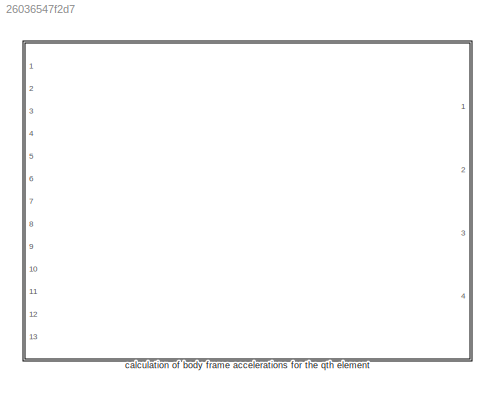
MODEL slx_26036547f2d7
KIND library
CONFIG AbsTol = auto
CONFIG EnableMultiTasking = off
CONFIG FixedStep = auto
CONFIG MaxStep = auto
CONFIG MinStep = auto
CONFIG RelTol = 1e-3
CONFIG SampleTimeConstraint = Unconstrained
CONFIG Solver = VariableStepAuto
CONFIG SolverName = VariableStepAuto
CONFIG StartTime = 0.0
CONFIG StopTime = 10.0
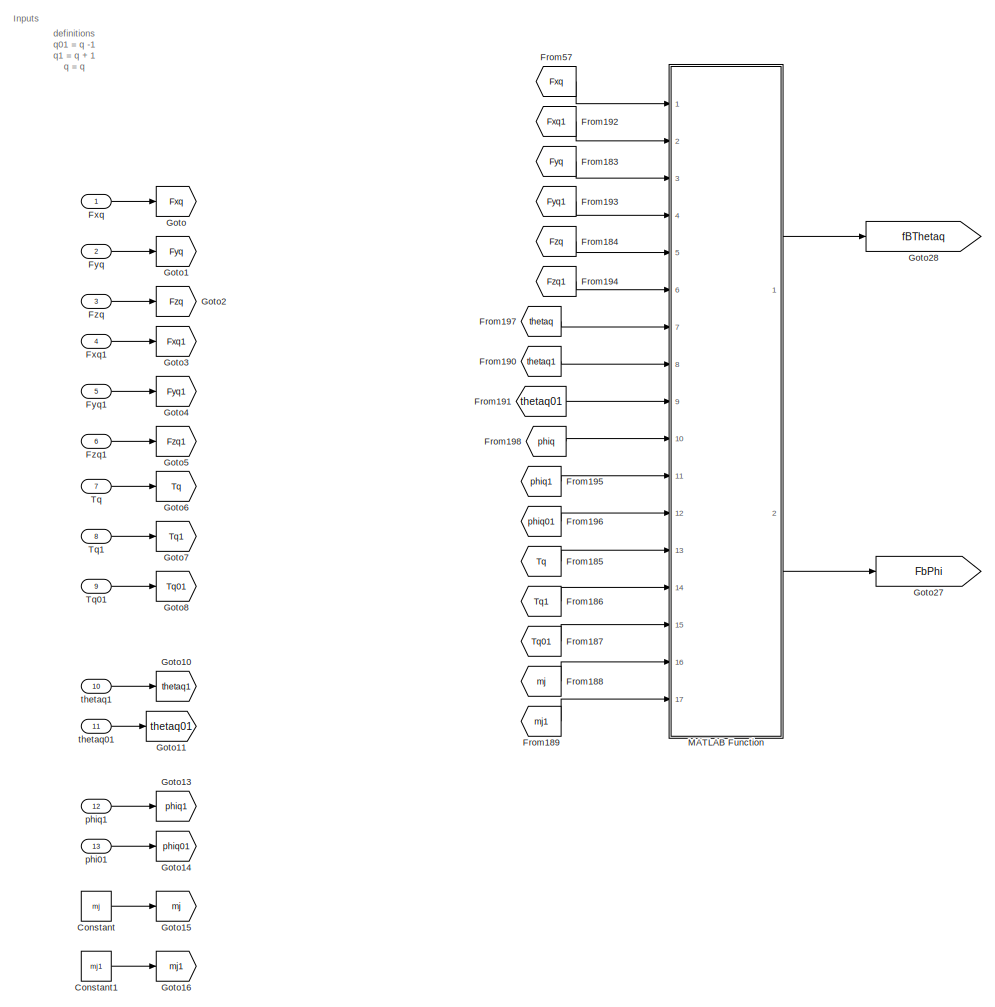
[diagram: calculation of body frame accelerations for the qth element - part 1/20, top left region]
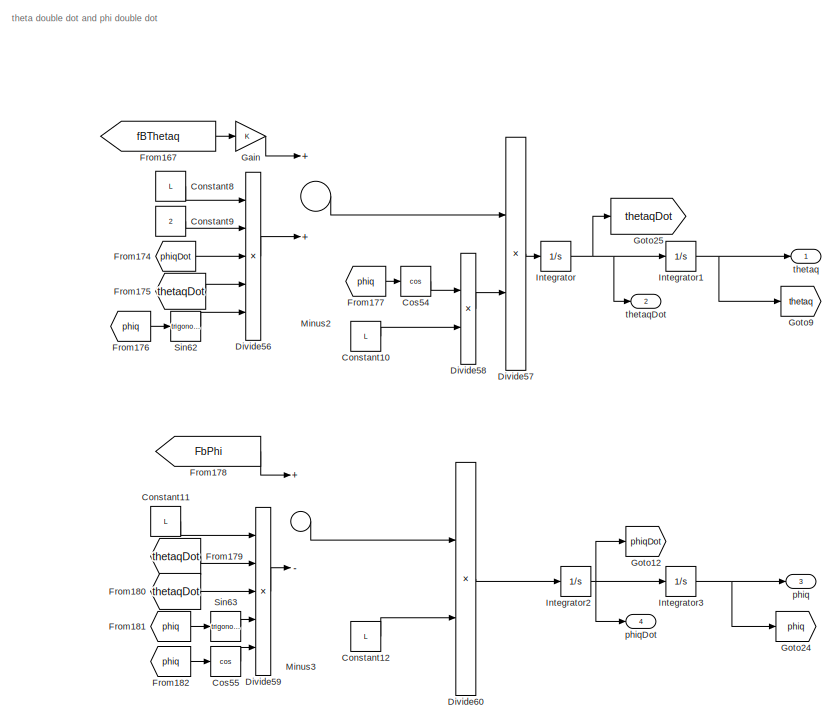
[diagram: calculation of body frame accelerations for the qth element - part 2/20, top center region]
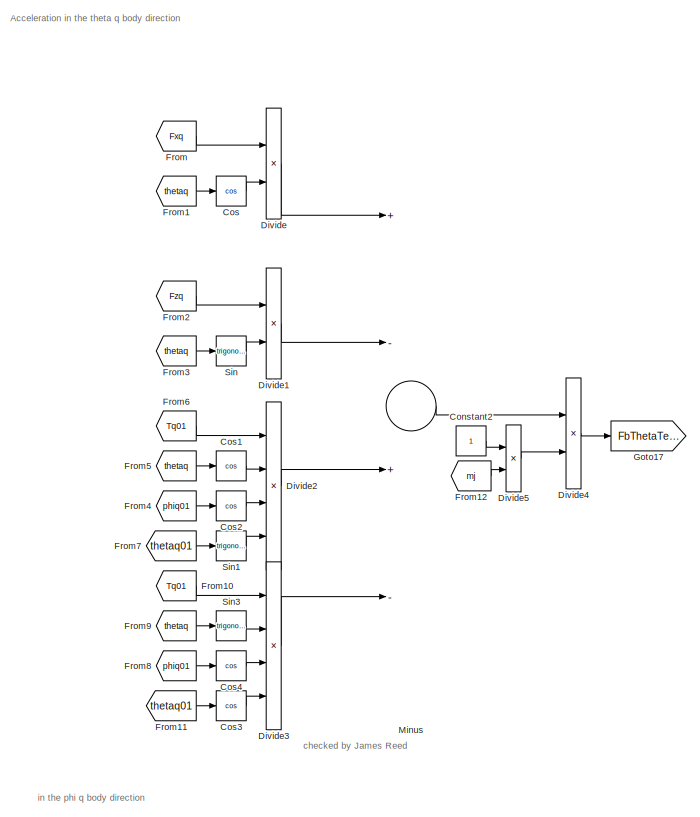
[diagram: calculation of body frame accelerations for the qth element - part 3/20, middle right region]
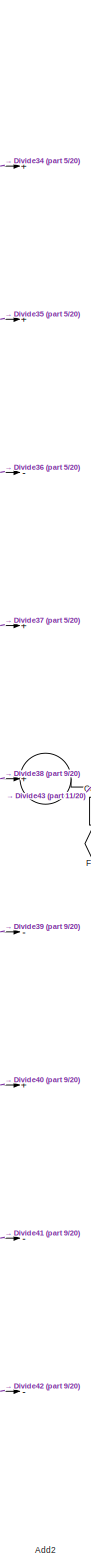
[diagram: calculation of body frame accelerations for the qth element - part 4/20, central region]
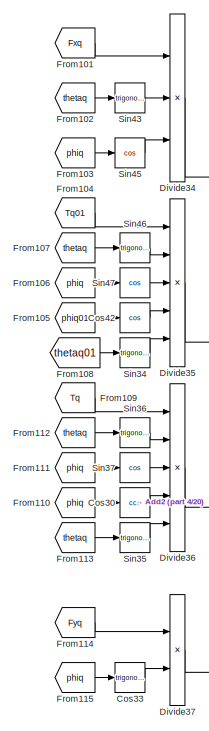
[diagram: calculation of body frame accelerations for the qth element - part 5/20, central region]
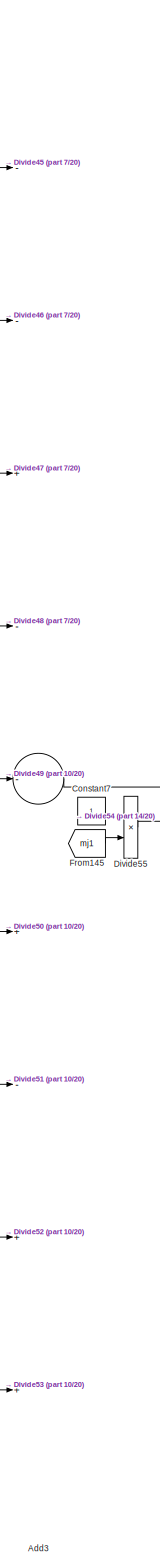
[diagram: calculation of body frame accelerations for the qth element - part 6/20, central region]
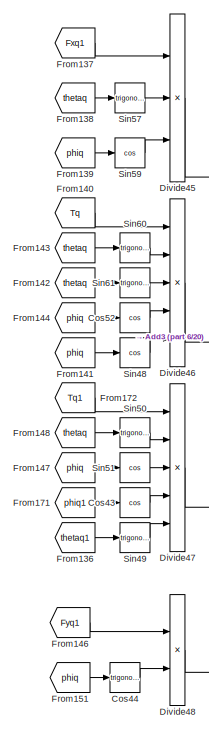
[diagram: calculation of body frame accelerations for the qth element - part 7/20, central region]
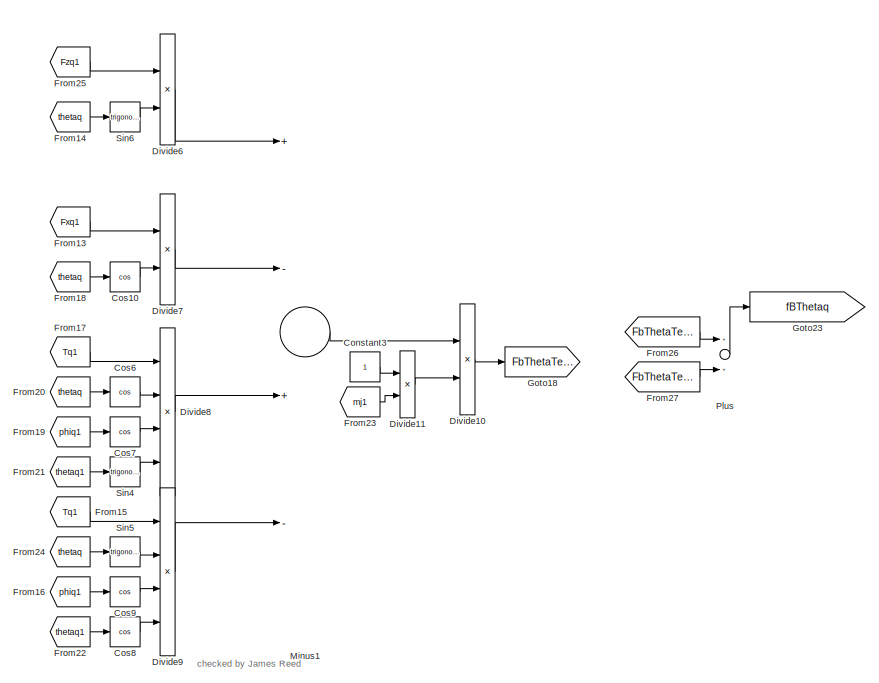
[diagram: calculation of body frame accelerations for the qth element - part 8/20, middle right region]
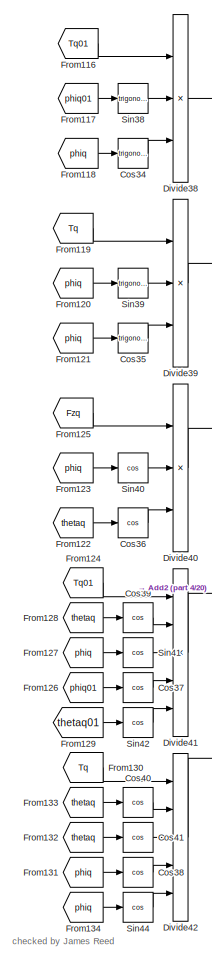
[diagram: calculation of body frame accelerations for the qth element - part 9/20, central region]
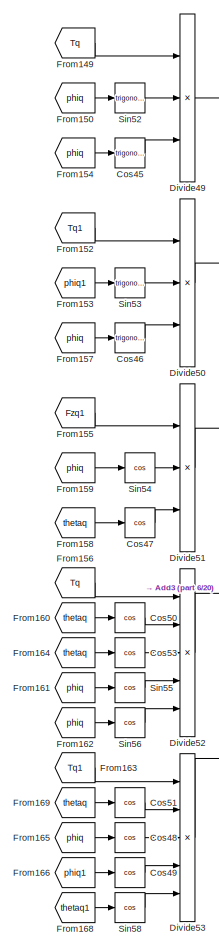
[diagram: calculation of body frame accelerations for the qth element - part 10/20, central region]
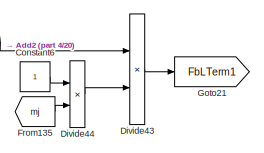
[diagram: calculation of body frame accelerations for the qth element - part 11/20, central region]
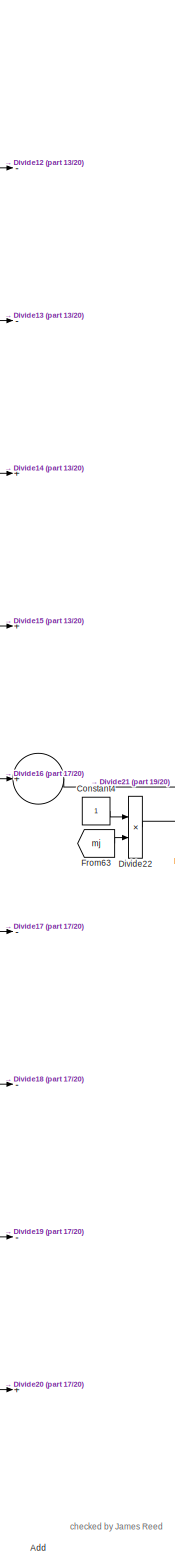
[diagram: calculation of body frame accelerations for the qth element - part 12/20, bottom right region]
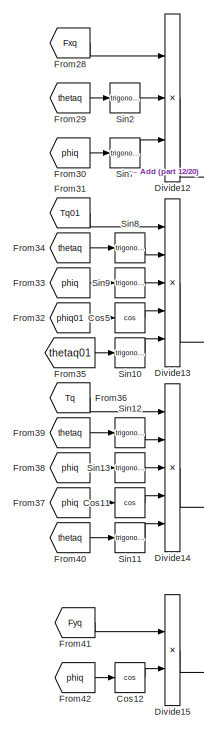
[diagram: calculation of body frame accelerations for the qth element - part 13/20, middle right region]
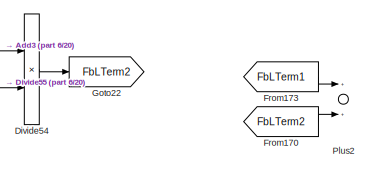
[diagram: calculation of body frame accelerations for the qth element - part 14/20, central region]
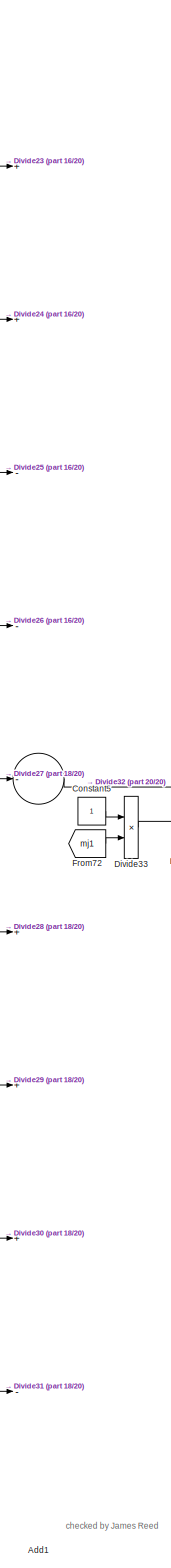
[diagram: calculation of body frame accelerations for the qth element - part 15/20, bottom right region]
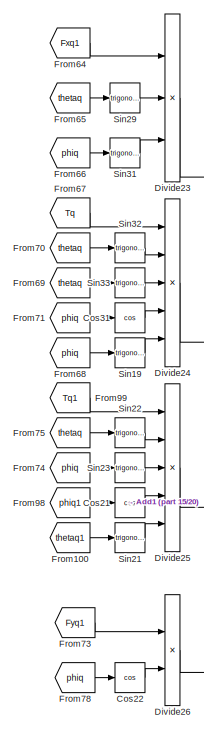
[diagram: calculation of body frame accelerations for the qth element - part 16/20, middle right region]
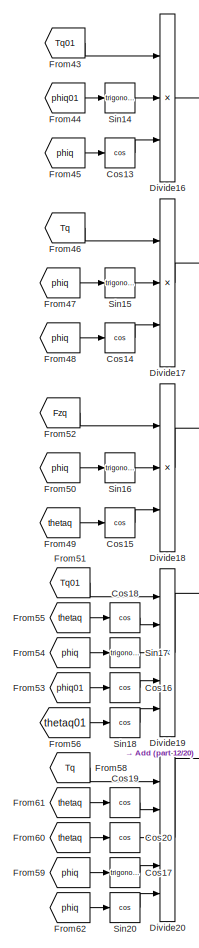
[diagram: calculation of body frame accelerations for the qth element - part 17/20, bottom right region]
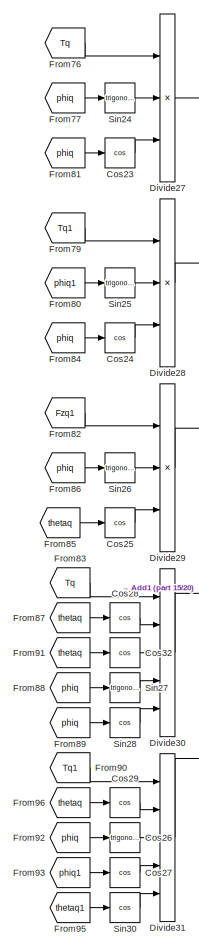
[diagram: calculation of body frame accelerations for the qth element - part 18/20, bottom right region]
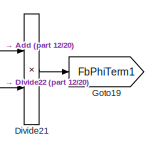
[diagram: calculation of body frame accelerations for the qth element - part 19/20, bottom right region]
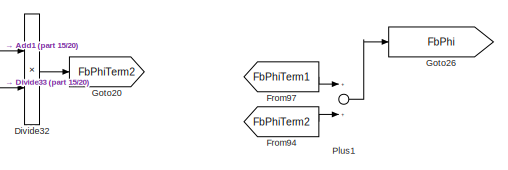
[diagram: calculation of body frame accelerations for the qth element - part 20/20, bottom right region]
BLOCK [SubSystem] calculation of body frame accelerations for the qth element
  Ports = [13, 4]
  RequestExecContextInheritance = off
BLOCK [Sum] calculation of body frame accelerations for the qth element/Add
  Commented = on
  InputSameDT = off
  Inputs = --+++---+
  OutDataTypeStr = Inherit: Inherit via internal rule
  Ports = [9, 1]
  SaturateOnIntegerOverflow = off
BLOCK [Sum] calculation of body frame accelerations for the qth element/Add1
  Commented = on
  InputSameDT = off
  Inputs = ++---+++-
  OutDataTypeStr = Inherit: Inherit via internal rule
  Ports = [9, 1]
  SaturateOnIntegerOverflow = off
BLOCK [Sum] calculation of body frame accelerations for the qth element/Add2
  Commented = on
  InputSameDT = off
  Inputs = ++-++-+--
  OutDataTypeStr = Inherit: Inherit via internal rule
  Ports = [9, 1]
  SaturateOnIntegerOverflow = off
BLOCK [Sum] calculation of body frame accelerations for the qth element/Add3
  Commented = on
  InputSameDT = off
  Inputs = --+--+-++
  OutDataTypeStr = Inherit: Inherit via internal rule
  Ports = [9, 1]
  SaturateOnIntegerOverflow = off
BLOCK [Constant] calculation of body frame accelerations for the qth element/Constant
  Value = mj
BLOCK [Constant] calculation of body frame accelerations for the qth element/Constant1
  Value = mj1
BLOCK [Constant] calculation of body frame accelerations for the qth element/Constant10
  Value = L
BLOCK [Constant] calculation of body frame accelerations for the qth element/Constant11
  Value = L
BLOCK [Constant] calculation of body frame accelerations for the qth element/Constant12
  Value = L
BLOCK [Constant] calculation of body frame accelerations for the qth element/Constant2
  Commented = on
BLOCK [Constant] calculation of body frame accelerations for the qth element/Constant3
  Commented = on
BLOCK [Constant] calculation of body frame accelerations for the qth element/Constant4
  Commented = on
BLOCK [Constant] calculation of body frame accelerations for the qth element/Constant5
  Commented = on
BLOCK [Constant] calculation of body frame accelerations for the qth element/Constant6
  Commented = on
BLOCK [Constant] calculation of body frame accelerations for the qth element/Constant7
  Commented = on
BLOCK [Constant] calculation of body frame accelerations for the qth element/Constant8
  Value = L
BLOCK [Constant] calculation of body frame accelerations for the qth element/Constant9
  Value = 2
BLOCK [Trigonometry] calculation of body frame accelerations for the qth element/Cos
  Commented = on
  Operator = cos
  Ports = [1, 1]
BLOCK [Trigonometry] calculation of body frame accelerations for the qth element/Cos1
  Commented = on
  Operator = cos
  Ports = [1, 1]
BLOCK [Trigonometry] calculation of body frame accelerations for the qth element/Cos10
  Commented = on
  Operator = cos
  Ports = [1, 1]
BLOCK [Trigonometry] calculation of body frame accelerations for the qth element/Cos11
  Commented = on
  Operator = cos
  Ports = [1, 1]
BLOCK [Trigonometry] calculation of body frame accelerations for the qth element/Cos12
  Commented = on
  Operator = cos
  Ports = [1, 1]
BLOCK [Trigonometry] calculation of body frame accelerations for the qth element/Cos13
  Commented = on
  Operator = cos
  Ports = [1, 1]
BLOCK [Trigonometry] calculation of body frame accelerations for the qth element/Cos14
  Commented = on
  Operator = cos
  Ports = [1, 1]
BLOCK [Trigonometry] calculation of body frame accelerations for the qth element/Cos15
  Commented = on
  Operator = cos
  Ports = [1, 1]
BLOCK [Trigonometry] calculation of body frame accelerations for the qth element/Cos16
  Commented = on
  Operator = cos
  Ports = [1, 1]
BLOCK [Trigonometry] calculation of body frame accelerations for the qth element/Cos17
  Commented = on
  Ports = [1, 1]
BLOCK [Trigonometry] calculation of body frame accelerations for the qth element/Cos18
  Commented = on
  Operator = cos
  Ports = [1, 1]
BLOCK [Trigonometry] calculation of body frame accelerations for the qth element/Cos19
  Commented = on
  Operator = cos
  Ports = [1, 1]
BLOCK [Trigonometry] calculation of body frame accelerations for the qth element/Cos2
  Commented = on
  Operator = cos
  Ports = [1, 1]
BLOCK [Trigonometry] calculation of body frame accelerations for the qth element/Cos20
  Commented = on
  Operator = cos
  Ports = [1, 1]
BLOCK [Trigonometry] calculation of body frame accelerations for the qth element/Cos21
  Commented = on
  Operator = cos
  Ports = [1, 1]
BLOCK [Trigonometry] calculation of body frame accelerations for the qth element/Cos22
  Commented = on
  Operator = cos
  Ports = [1, 1]
BLOCK [Trigonometry] calculation of body frame accelerations for the qth element/Cos23
  Commented = on
  Operator = cos
  Ports = [1, 1]
BLOCK [Trigonometry] calculation of body frame accelerations for the qth element/Cos24
  Commented = on
  Operator = cos
  Ports = [1, 1]
BLOCK [Trigonometry] calculation of body frame accelerations for the qth element/Cos25
  Commented = on
  Operator = cos
  Ports = [1, 1]
BLOCK [Trigonometry] calculation of body frame accelerations for the qth element/Cos26
  Commented = on
  Ports = [1, 1]
BLOCK [Trigonometry] calculation of body frame accelerations for the qth element/Cos27
  Commented = on
  Operator = cos
  Ports = [1, 1]
BLOCK [Trigonometry] calculation of body frame accelerations for the qth element/Cos28
  Commented = on
  Operator = cos
  Ports = [1, 1]
BLOCK [Trigonometry] calculation of body frame accelerations for the qth element/Cos29
  Commented = on
  Operator = cos
  Ports = [1, 1]
BLOCK [Trigonometry] calculation of body frame accelerations for the qth element/Cos3
  Commented = on
  Operator = cos
  Ports = [1, 1]
BLOCK [Trigonometry] calculation of body frame accelerations for the qth element/Cos30
  Commented = on
  Operator = cos
  Ports = [1, 1]
BLOCK [Trigonometry] calculation of body frame accelerations for the qth element/Cos31
  Commented = on
  Operator = cos
  Ports = [1, 1]
BLOCK [Trigonometry] calculation of body frame accelerations for the qth element/Cos32
  Commented = on
  Operator = cos
  Ports = [1, 1]
BLOCK [Trigonometry] calculation of body frame accelerations for the qth element/Cos33
  Commented = on
  Ports = [1, 1]
BLOCK [Trigonometry] calculation of body frame accelerations for the qth element/Cos34
  Commented = on
  Ports = [1, 1]
BLOCK [Trigonometry] calculation of body frame accelerations for the qth element/Cos35
  Commented = on
  Ports = [1, 1]
BLOCK [Trigonometry] calculation of body frame accelerations for the qth element/Cos36
  Commented = on
  Operator = cos
  Ports = [1, 1]
BLOCK [Trigonometry] calculation of body frame accelerations for the qth element/Cos37
  Commented = on
  Operator = cos
  Ports = [1, 1]
BLOCK [Trigonometry] calculation of body frame accelerations for the qth element/Cos38
  Commented = on
  Operator = cos
  Ports = [1, 1]
BLOCK [Trigonometry] calculation of body frame accelerations for the qth element/Cos39
  Commented = on
  Operator = cos
  Ports = [1, 1]
BLOCK [Trigonometry] calculation of body frame accelerations for the qth element/Cos4
  Commented = on
  Operator = cos
  Ports = [1, 1]
BLOCK [Trigonometry] calculation of body frame accelerations for the qth element/Cos40
  Commented = on
  Operator = cos
  Ports = [1, 1]
BLOCK [Trigonometry] calculation of body frame accelerations for the qth element/Cos41
  Commented = on
  Operator = cos
  Ports = [1, 1]
BLOCK [Trigonometry] calculation of body frame accelerations for the qth element/Cos42
  Commented = on
  Operator = cos
  Ports = [1, 1]
BLOCK [Trigonometry] calculation of body frame accelerations for the qth element/Cos43
  Commented = on
  Operator = cos
  Ports = [1, 1]
BLOCK [Trigonometry] calculation of body frame accelerations for the qth element/Cos44
  Commented = on
  Ports = [1, 1]
BLOCK [Trigonometry] calculation of body frame accelerations for the qth element/Cos45
  Commented = on
  Ports = [1, 1]
BLOCK [Trigonometry] calculation of body frame accelerations for the qth element/Cos46
  Commented = on
  Ports = [1, 1]
BLOCK [Trigonometry] calculation of body frame accelerations for the qth element/Cos47
  Commented = on
  Operator = cos
  Ports = [1, 1]
BLOCK [Trigonometry] calculation of body frame accelerations for the qth element/Cos48
  Commented = on
  Operator = cos
  Ports = [1, 1]
BLOCK [Trigonometry] calculation of body frame accelerations for the qth element/Cos49
  Commented = on
  Operator = cos
  Ports = [1, 1]
BLOCK [Trigonometry] calculation of body frame accelerations for the qth element/Cos5
  Commented = on
  Operator = cos
  Ports = [1, 1]
BLOCK [Trigonometry] calculation of body frame accelerations for the qth element/Cos50
  Commented = on
  Operator = cos
  Ports = [1, 1]
BLOCK [Trigonometry] calculation of body frame accelerations for the qth element/Cos51
  Commented = on
  Operator = cos
  Ports = [1, 1]
BLOCK [Trigonometry] calculation of body frame accelerations for the qth element/Cos52
  Commented = on
  Operator = cos
  Ports = [1, 1]
BLOCK [Trigonometry] calculation of body frame accelerations for the qth element/Cos53
  Commented = on
  Operator = cos
  Ports = [1, 1]
BLOCK [Trigonometry] calculation of body frame accelerations for the qth element/Cos54
  Operator = cos
  Ports = [1, 1]
BLOCK [Trigonometry] calculation of body frame accelerations for the qth element/Cos55
  Operator = cos
  Ports = [1, 1]
BLOCK [Trigonometry] calculation of body frame accelerations for the qth element/Cos6
  Commented = on
  Operator = cos
  Ports = [1, 1]
BLOCK [Trigonometry] calculation of body frame accelerations for the qth element/Cos7
  Commented = on
  Operator = cos
  Ports = [1, 1]
BLOCK [Trigonometry] calculation of body frame accelerations for the qth element/Cos8
  Commented = on
  Operator = cos
  Ports = [1, 1]
BLOCK [Trigonometry] calculation of body frame accelerations for the qth element/Cos9
  Commented = on
  Operator = cos
  Ports = [1, 1]
BLOCK [Product] calculation of body frame accelerations for the qth element/Divide
  Commented = on
  InputSameDT = off
  Inputs = **
  OutDataTypeStr = Inherit: Inherit via internal rule
  Ports = [2, 1]
  RndMeth = Floor
  SaturateOnIntegerOverflow = off
BLOCK [Product] calculation of body frame accelerations for the qth element/Divide1
  Commented = on
  InputSameDT = off
  Inputs = **
  OutDataTypeStr = Inherit: Inherit via internal rule
  Ports = [2, 1]
  RndMeth = Floor
  SaturateOnIntegerOverflow = off
BLOCK [Product] calculation of body frame accelerations for the qth element/Divide10
  Commented = on
  InputSameDT = off
  Inputs = **
  OutDataTypeStr = Inherit: Inherit via internal rule
  Ports = [2, 1]
  RndMeth = Floor
  SaturateOnIntegerOverflow = off
BLOCK [Product] calculation of body frame accelerations for the qth element/Divide11
  Commented = on
  InputSameDT = off
  Inputs = */
  OutDataTypeStr = Inherit: Inherit via internal rule
  Ports = [2, 1]
  RndMeth = Floor
  SaturateOnIntegerOverflow = off
BLOCK [Product] calculation of body frame accelerations for the qth element/Divide12
  Commented = on
  InputSameDT = off
  Inputs = ***
  OutDataTypeStr = Inherit: Inherit via internal rule
  Ports = [3, 1]
  RndMeth = Floor
  SaturateOnIntegerOverflow = off
BLOCK [Product] calculation of body frame accelerations for the qth element/Divide13
  Commented = on
  InputSameDT = off
  Inputs = *****
  OutDataTypeStr = Inherit: Inherit via internal rule
  Ports = [5, 1]
  RndMeth = Floor
  SaturateOnIntegerOverflow = off
BLOCK [Product] calculation of body frame accelerations for the qth element/Divide14
  Commented = on
  InputSameDT = off
  Inputs = *****
  OutDataTypeStr = Inherit: Inherit via internal rule
  Ports = [5, 1]
  RndMeth = Floor
  SaturateOnIntegerOverflow = off
BLOCK [Product] calculation of body frame accelerations for the qth element/Divide15
  Commented = on
  InputSameDT = off
  Inputs = **
  OutDataTypeStr = Inherit: Inherit via internal rule
  Ports = [2, 1]
  RndMeth = Floor
  SaturateOnIntegerOverflow = off
BLOCK [Product] calculation of body frame accelerations for the qth element/Divide16
  Commented = on
  InputSameDT = off
  Inputs = ***
  OutDataTypeStr = Inherit: Inherit via internal rule
  Ports = [3, 1]
  RndMeth = Floor
  SaturateOnIntegerOverflow = off
BLOCK [Product] calculation of body frame accelerations for the qth element/Divide17
  Commented = on
  InputSameDT = off
  Inputs = ***
  OutDataTypeStr = Inherit: Inherit via internal rule
  Ports = [3, 1]
  RndMeth = Floor
  SaturateOnIntegerOverflow = off
BLOCK [Product] calculation of body frame accelerations for the qth element/Divide18
  Commented = on
  InputSameDT = off
  Inputs = ***
  OutDataTypeStr = Inherit: Inherit via internal rule
  Ports = [3, 1]
  RndMeth = Floor
  SaturateOnIntegerOverflow = off
BLOCK [Product] calculation of body frame accelerations for the qth element/Divide19
  Commented = on
  InputSameDT = off
  Inputs = *****
  OutDataTypeStr = Inherit: Inherit via internal rule
  Ports = [5, 1]
  RndMeth = Floor
  SaturateOnIntegerOverflow = off
BLOCK [Product] calculation of body frame accelerations for the qth element/Divide2
  Commented = on
  InputSameDT = off
  Inputs = ****
  OutDataTypeStr = Inherit: Inherit via internal rule
  Ports = [4, 1]
  RndMeth = Floor
  SaturateOnIntegerOverflow = off
BLOCK [Product] calculation of body frame accelerations for the qth element/Divide20
  Commented = on
  InputSameDT = off
  Inputs = *****
  OutDataTypeStr = Inherit: Inherit via internal rule
  Ports = [5, 1]
  RndMeth = Floor
  SaturateOnIntegerOverflow = off
BLOCK [Product] calculation of body frame accelerations for the qth element/Divide21
  Commented = on
  InputSameDT = off
  Inputs = **
  OutDataTypeStr = Inherit: Inherit via internal rule
  Ports = [2, 1]
  RndMeth = Floor
  SaturateOnIntegerOverflow = off
BLOCK [Product] calculation of body frame accelerations for the qth element/Divide22
  Commented = on
  InputSameDT = off
  Inputs = */
  OutDataTypeStr = Inherit: Inherit via internal rule
  Ports = [2, 1]
  RndMeth = Floor
  SaturateOnIntegerOverflow = off
BLOCK [Product] calculation of body frame accelerations for the qth element/Divide23
  Commented = on
  InputSameDT = off
  Inputs = ***
  OutDataTypeStr = Inherit: Inherit via internal rule
  Ports = [3, 1]
  RndMeth = Floor
  SaturateOnIntegerOverflow = off
BLOCK [Product] calculation of body frame accelerations for the qth element/Divide24
  Commented = on
  InputSameDT = off
  Inputs = *****
  OutDataTypeStr = Inherit: Inherit via internal rule
  Ports = [5, 1]
  RndMeth = Floor
  SaturateOnIntegerOverflow = off
BLOCK [Product] calculation of body frame accelerations for the qth element/Divide25
  Commented = on
  InputSameDT = off
  Inputs = *****
  OutDataTypeStr = Inherit: Inherit via internal rule
  Ports = [5, 1]
  RndMeth = Floor
  SaturateOnIntegerOverflow = off
BLOCK [Product] calculation of body frame accelerations for the qth element/Divide26
  Commented = on
  InputSameDT = off
  Inputs = **
  OutDataTypeStr = Inherit: Inherit via internal rule
  Ports = [2, 1]
  RndMeth = Floor
  SaturateOnIntegerOverflow = off
BLOCK [Product] calculation of body frame accelerations for the qth element/Divide27
  Commented = on
  InputSameDT = off
  Inputs = ***
  OutDataTypeStr = Inherit: Inherit via internal rule
  Ports = [3, 1]
  RndMeth = Floor
  SaturateOnIntegerOverflow = off
BLOCK [Product] calculation of body frame accelerations for the qth element/Divide28
  Commented = on
  InputSameDT = off
  Inputs = ***
  OutDataTypeStr = Inherit: Inherit via internal rule
  Ports = [3, 1]
  RndMeth = Floor
  SaturateOnIntegerOverflow = off
BLOCK [Product] calculation of body frame accelerations for the qth element/Divide29
  Commented = on
  InputSameDT = off
  Inputs = ***
  OutDataTypeStr = Inherit: Inherit via internal rule
  Ports = [3, 1]
  RndMeth = Floor
  SaturateOnIntegerOverflow = off
BLOCK [Product] calculation of body frame accelerations for the qth element/Divide3
  Commented = on
  InputSameDT = off
  Inputs = ****
  OutDataTypeStr = Inherit: Inherit via internal rule
  Ports = [4, 1]
  RndMeth = Floor
  SaturateOnIntegerOverflow = off
BLOCK [Product] calculation of body frame accelerations for the qth element/Divide30
  Commented = on
  InputSameDT = off
  Inputs = *****
  OutDataTypeStr = Inherit: Inherit via internal rule
  Ports = [5, 1]
  RndMeth = Floor
  SaturateOnIntegerOverflow = off
BLOCK [Product] calculation of body frame accelerations for the qth element/Divide31
  Commented = on
  InputSameDT = off
  Inputs = *****
  OutDataTypeStr = Inherit: Inherit via internal rule
  Ports = [5, 1]
  RndMeth = Floor
  SaturateOnIntegerOverflow = off
BLOCK [Product] calculation of body frame accelerations for the qth element/Divide32
  Commented = on
  InputSameDT = off
  Inputs = **
  OutDataTypeStr = Inherit: Inherit via internal rule
  Ports = [2, 1]
  RndMeth = Floor
  SaturateOnIntegerOverflow = off
BLOCK [Product] calculation of body frame accelerations for the qth element/Divide33
  Commented = on
  InputSameDT = off
  Inputs = */
  OutDataTypeStr = Inherit: Inherit via internal rule
  Ports = [2, 1]
  RndMeth = Floor
  SaturateOnIntegerOverflow = off
BLOCK [Product] calculation of body frame accelerations for the qth element/Divide34
  Commented = on
  InputSameDT = off
  Inputs = ***
  OutDataTypeStr = Inherit: Inherit via internal rule
  Ports = [3, 1]
  RndMeth = Floor
  SaturateOnIntegerOverflow = off
BLOCK [Product] calculation of body frame accelerations for the qth element/Divide35
  Commented = on
  InputSameDT = off
  Inputs = *****
  OutDataTypeStr = Inherit: Inherit via internal rule
  Ports = [5, 1]
  RndMeth = Floor
  SaturateOnIntegerOverflow = off
BLOCK [Product] calculation of body frame accelerations for the qth element/Divide36
  Commented = on
  InputSameDT = off
  Inputs = *****
  OutDataTypeStr = Inherit: Inherit via internal rule
  Ports = [5, 1]
  RndMeth = Floor
  SaturateOnIntegerOverflow = off
BLOCK [Product] calculation of body frame accelerations for the qth element/Divide37
  Commented = on
  InputSameDT = off
  Inputs = **
  OutDataTypeStr = Inherit: Inherit via internal rule
  Ports = [2, 1]
  RndMeth = Floor
  SaturateOnIntegerOverflow = off
BLOCK [Product] calculation of body frame accelerations for the qth element/Divide38
  Commented = on
  InputSameDT = off
  Inputs = ***
  OutDataTypeStr = Inherit: Inherit via internal rule
  Ports = [3, 1]
  RndMeth = Floor
  SaturateOnIntegerOverflow = off
BLOCK [Product] calculation of body frame accelerations for the qth element/Divide39
  Commented = on
  InputSameDT = off
  Inputs = ***
  OutDataTypeStr = Inherit: Inherit via internal rule
  Ports = [3, 1]
  RndMeth = Floor
  SaturateOnIntegerOverflow = off
BLOCK [Product] calculation of body frame accelerations for the qth element/Divide4
  Commented = on
  InputSameDT = off
  Inputs = **
  OutDataTypeStr = Inherit: Inherit via internal rule
  Ports = [2, 1]
  RndMeth = Floor
  SaturateOnIntegerOverflow = off
BLOCK [Product] calculation of body frame accelerations for the qth element/Divide40
  Commented = on
  InputSameDT = off
  Inputs = ***
  OutDataTypeStr = Inherit: Inherit via internal rule
  Ports = [3, 1]
  RndMeth = Floor
  SaturateOnIntegerOverflow = off
BLOCK [Product] calculation of body frame accelerations for the qth element/Divide41
  Commented = on
  InputSameDT = off
  Inputs = *****
  OutDataTypeStr = Inherit: Inherit via internal rule
  Ports = [5, 1]
  RndMeth = Floor
  SaturateOnIntegerOverflow = off
BLOCK [Product] calculation of body frame accelerations for the qth element/Divide42
  Commented = on
  InputSameDT = off
  Inputs = *****
  OutDataTypeStr = Inherit: Inherit via internal rule
  Ports = [5, 1]
  RndMeth = Floor
  SaturateOnIntegerOverflow = off
BLOCK [Product] calculation of body frame accelerations for the qth element/Divide43
  Commented = on
  InputSameDT = off
  Inputs = **
  OutDataTypeStr = Inherit: Inherit via internal rule
  Ports = [2, 1]
  RndMeth = Floor
  SaturateOnIntegerOverflow = off
BLOCK [Product] calculation of body frame accelerations for the qth element/Divide44
  Commented = on
  InputSameDT = off
  Inputs = */
  OutDataTypeStr = Inherit: Inherit via internal rule
  Ports = [2, 1]
  RndMeth = Floor
  SaturateOnIntegerOverflow = off
BLOCK [Product] calculation of body frame accelerations for the qth element/Divide45
  Commented = on
  InputSameDT = off
  Inputs = ***
  OutDataTypeStr = Inherit: Inherit via internal rule
  Ports = [3, 1]
  RndMeth = Floor
  SaturateOnIntegerOverflow = off
BLOCK [Product] calculation of body frame accelerations for the qth element/Divide46
  Commented = on
  InputSameDT = off
  Inputs = *****
  OutDataTypeStr = Inherit: Inherit via internal rule
  Ports = [5, 1]
  RndMeth = Floor
  SaturateOnIntegerOverflow = off
BLOCK [Product] calculation of body frame accelerations for the qth element/Divide47
  Commented = on
  InputSameDT = off
  Inputs = *****
  OutDataTypeStr = Inherit: Inherit via internal rule
  Ports = [5, 1]
  RndMeth = Floor
  SaturateOnIntegerOverflow = off
BLOCK [Product] calculation of body frame accelerations for the qth element/Divide48
  Commented = on
  InputSameDT = off
  Inputs = **
  OutDataTypeStr = Inherit: Inherit via internal rule
  Ports = [2, 1]
  RndMeth = Floor
  SaturateOnIntegerOverflow = off
BLOCK [Product] calculation of body frame accelerations for the qth element/Divide49
  Commented = on
  InputSameDT = off
  Inputs = ***
  OutDataTypeStr = Inherit: Inherit via internal rule
  Ports = [3, 1]
  RndMeth = Floor
  SaturateOnIntegerOverflow = off
BLOCK [Product] calculation of body frame accelerations for the qth element/Divide5
  Commented = on
  InputSameDT = off
  Inputs = */
  OutDataTypeStr = Inherit: Inherit via internal rule
  Ports = [2, 1]
  RndMeth = Floor
  SaturateOnIntegerOverflow = off
BLOCK [Product] calculation of body frame accelerations for the qth element/Divide50
  Commented = on
  InputSameDT = off
  Inputs = ***
  OutDataTypeStr = Inherit: Inherit via internal rule
  Ports = [3, 1]
  RndMeth = Floor
  SaturateOnIntegerOverflow = off
BLOCK [Product] calculation of body frame accelerations for the qth element/Divide51
  Commented = on
  InputSameDT = off
  Inputs = ***
  OutDataTypeStr = Inherit: Inherit via internal rule
  Ports = [3, 1]
  RndMeth = Floor
  SaturateOnIntegerOverflow = off
BLOCK [Product] calculation of body frame accelerations for the qth element/Divide52
  Commented = on
  InputSameDT = off
  Inputs = *****
  OutDataTypeStr = Inherit: Inherit via internal rule
  Ports = [5, 1]
  RndMeth = Floor
  SaturateOnIntegerOverflow = off
BLOCK [Product] calculation of body frame accelerations for the qth element/Divide53
  Commented = on
  InputSameDT = off
  Inputs = *****
  OutDataTypeStr = Inherit: Inherit via internal rule
  Ports = [5, 1]
  RndMeth = Floor
  SaturateOnIntegerOverflow = off
BLOCK [Product] calculation of body frame accelerations for the qth element/Divide54
  Commented = on
  InputSameDT = off
  Inputs = **
  OutDataTypeStr = Inherit: Inherit via internal rule
  Ports = [2, 1]
  RndMeth = Floor
  SaturateOnIntegerOverflow = off
BLOCK [Product] calculation of body frame accelerations for the qth element/Divide55
  Commented = on
  InputSameDT = off
  Inputs = */
  OutDataTypeStr = Inherit: Inherit via internal rule
  Ports = [2, 1]
  RndMeth = Floor
  SaturateOnIntegerOverflow = off
BLOCK [Product] calculation of body frame accelerations for the qth element/Divide56
  InputSameDT = off
  Inputs = *****
  OutDataTypeStr = Inherit: Inherit via internal rule
  Ports = [5, 1]
  RndMeth = Floor
  SaturateOnIntegerOverflow = off
BLOCK [Product] calculation of body frame accelerations for the qth element/Divide57
  InputSameDT = off
  Inputs = */
  OutDataTypeStr = Inherit: Inherit via internal rule
  Ports = [2, 1]
  RndMeth = Floor
  SaturateOnIntegerOverflow = off
BLOCK [Product] calculation of body frame accelerations for the qth element/Divide58
  InputSameDT = off
  Inputs = **
  OutDataTypeStr = Inherit: Inherit via internal rule
  Ports = [2, 1]
  RndMeth = Floor
  SaturateOnIntegerOverflow = off
BLOCK [Product] calculation of body frame accelerations for the qth element/Divide59
  InputSameDT = off
  Inputs = *****
  OutDataTypeStr = Inherit: Inherit via internal rule
  Ports = [5, 1]
  RndMeth = Floor
  SaturateOnIntegerOverflow = off
BLOCK [Product] calculation of body frame accelerations for the qth element/Divide6
  Commented = on
  InputSameDT = off
  Inputs = **
  OutDataTypeStr = Inherit: Inherit via internal rule
  Ports = [2, 1]
  RndMeth = Floor
  SaturateOnIntegerOverflow = off
BLOCK [Product] calculation of body frame accelerations for the qth element/Divide60
  InputSameDT = off
  Inputs = */
  OutDataTypeStr = Inherit: Inherit via internal rule
  Ports = [2, 1]
  RndMeth = Floor
  SaturateOnIntegerOverflow = off
BLOCK [Product] calculation of body frame accelerations for the qth element/Divide7
  Commented = on
  InputSameDT = off
  Inputs = **
  OutDataTypeStr = Inherit: Inherit via internal rule
  Ports = [2, 1]
  RndMeth = Floor
  SaturateOnIntegerOverflow = off
BLOCK [Product] calculation of body frame accelerations for the qth element/Divide8
  Commented = on
  InputSameDT = off
  Inputs = ****
  OutDataTypeStr = Inherit: Inherit via internal rule
  Ports = [4, 1]
  RndMeth = Floor
  SaturateOnIntegerOverflow = off
BLOCK [Product] calculation of body frame accelerations for the qth element/Divide9
  Commented = on
  InputSameDT = off
  Inputs = ****
  OutDataTypeStr = Inherit: Inherit via internal rule
  Ports = [4, 1]
  RndMeth = Floor
  SaturateOnIntegerOverflow = off
BLOCK [From] calculation of body frame accelerations for the qth element/From
  Commented = on
  GotoTag = Fxq
BLOCK [From] calculation of body frame accelerations for the qth element/From1
  Commented = on
  GotoTag = thetaq
BLOCK [From] calculation of body frame accelerations for the qth element/From10
  Commented = on
  GotoTag = Tq01
BLOCK [From] calculation of body frame accelerations for the qth element/From100
  Commented = on
  GotoTag = thetaq1
BLOCK [From] calculation of body frame accelerations for the qth element/From101
  Commented = on
  GotoTag = Fxq
BLOCK [From] calculation of body frame accelerations for the qth element/From102
  Commented = on
  GotoTag = thetaq
BLOCK [From] calculation of body frame accelerations for the qth element/From103
  Commented = on
  GotoTag = phiq
BLOCK [From] calculation of body frame accelerations for the qth element/From104
  Commented = on
  GotoTag = Tq01
BLOCK [From] calculation of body frame accelerations for the qth element/From105
  Commented = on
  GotoTag = phiq01
BLOCK [From] calculation of body frame accelerations for the qth element/From106
  Commented = on
  GotoTag = phiq
BLOCK [From] calculation of body frame accelerations for the qth element/From107
  Commented = on
  GotoTag = thetaq
BLOCK [From] calculation of body frame accelerations for the qth element/From108
  Commented = on
  GotoTag = thetaq01
BLOCK [From] calculation of body frame accelerations for the qth element/From109
  Commented = on
  GotoTag = Tq
BLOCK [From] calculation of body frame accelerations for the qth element/From11
  Commented = on
  GotoTag = thetaq01
BLOCK [From] calculation of body frame accelerations for the qth element/From110
  Commented = on
  GotoTag = phiq
BLOCK [From] calculation of body frame accelerations for the qth element/From111
  Commented = on
  GotoTag = phiq
BLOCK [From] calculation of body frame accelerations for the qth element/From112
  Commented = on
  GotoTag = thetaq
BLOCK [From] calculation of body frame accelerations for the qth element/From113
  Commented = on
  GotoTag = thetaq
BLOCK [From] calculation of body frame accelerations for the qth element/From114
  Commented = on
  GotoTag = Fyq
BLOCK [From] calculation of body frame accelerations for the qth element/From115
  Commented = on
  GotoTag = phiq
BLOCK [From] calculation of body frame accelerations for the qth element/From116
  Commented = on
  GotoTag = Tq01
BLOCK [From] calculation of body frame accelerations for the qth element/From117
  Commented = on
  GotoTag = phiq01
BLOCK [From] calculation of body frame accelerations for the qth element/From118
  Commented = on
  GotoTag = phiq
BLOCK [From] calculation of body frame accelerations for the qth element/From119
  Commented = on
  GotoTag = Tq
BLOCK [From] calculation of body frame accelerations for the qth element/From12
  Commented = on
  GotoTag = mj
BLOCK [From] calculation of body frame accelerations for the qth element/From120
  Commented = on
  GotoTag = phiq
BLOCK [From] calculation of body frame accelerations for the qth element/From121
  Commented = on
  GotoTag = phiq
BLOCK [From] calculation of body frame accelerations for the qth element/From122
  Commented = on
  GotoTag = thetaq
BLOCK [From] calculation of body frame accelerations for the qth element/From123
  Commented = on
  GotoTag = phiq
BLOCK [From] calculation of body frame accelerations for the qth element/From124
  Commented = on
  GotoTag = Tq01
BLOCK [From] calculation of body frame accelerations for the qth element/From125
  Commented = on
  GotoTag = Fzq
BLOCK [From] calculation of body frame accelerations for the qth element/From126
  Commented = on
  GotoTag = phiq01
BLOCK [From] calculation of body frame accelerations for the qth element/From127
  Commented = on
  GotoTag = phiq
BLOCK [From] calculation of body frame accelerations for the qth element/From128
  Commented = on
  GotoTag = thetaq
BLOCK [From] calculation of body frame accelerations for the qth element/From129
  Commented = on
  GotoTag = thetaq01
BLOCK [From] calculation of body frame accelerations for the qth element/From13
  Commented = on
  GotoTag = Fxq1
BLOCK [From] calculation of body frame accelerations for the qth element/From130
  Commented = on
  GotoTag = Tq
BLOCK [From] calculation of body frame accelerations for the qth element/From131
  Commented = on
  GotoTag = phiq
BLOCK [From] calculation of body frame accelerations for the qth element/From132
  Commented = on
  GotoTag = thetaq
BLOCK [From] calculation of body frame accelerations for the qth element/From133
  Commented = on
  GotoTag = thetaq
BLOCK [From] calculation of body frame accelerations for the qth element/From134
  Commented = on
  GotoTag = phiq
BLOCK [From] calculation of body frame accelerations for the qth element/From135
  Commented = on
  GotoTag = mj
BLOCK [From] calculation of body frame accelerations for the qth element/From136
  Commented = on
  GotoTag = thetaq1
BLOCK [From] calculation of body frame accelerations for the qth element/From137
  Commented = on
  GotoTag = Fxq1
BLOCK [From] calculation of body frame accelerations for the qth element/From138
  Commented = on
  GotoTag = thetaq
BLOCK [From] calculation of body frame accelerations for the qth element/From139
  Commented = on
  GotoTag = phiq
BLOCK [From] calculation of body frame accelerations for the qth element/From14
  Commented = on
  GotoTag = thetaq
BLOCK [From] calculation of body frame accelerations for the qth element/From140
  Commented = on
  GotoTag = Tq
BLOCK [From] calculation of body frame accelerations for the qth element/From141
  Commented = on
  GotoTag = phiq
BLOCK [From] calculation of body frame accelerations for the qth element/From142
  Commented = on
  GotoTag = thetaq
BLOCK [From] calculation of body frame accelerations for the qth element/From143
  Commented = on
  GotoTag = thetaq
BLOCK [From] calculation of body frame accelerations for the qth element/From144
  Commented = on
  GotoTag = phiq
BLOCK [From] calculation of body frame accelerations for the qth element/From145
  Commented = on
  GotoTag = mj1
BLOCK [From] calculation of body frame accelerations for the qth element/From146
  Commented = on
  GotoTag = Fyq1
BLOCK [From] calculation of body frame accelerations for the qth element/From147
  Commented = on
  GotoTag = phiq
BLOCK [From] calculation of body frame accelerations for the qth element/From148
  Commented = on
  GotoTag = thetaq
BLOCK [From] calculation of body frame accelerations for the qth element/From149
  Commented = on
  GotoTag = Tq
BLOCK [From] calculation of body frame accelerations for the qth element/From15
  Commented = on
  GotoTag = Tq1
BLOCK [From] calculation of body frame accelerations for the qth element/From150
  Commented = on
  GotoTag = phiq
BLOCK [From] calculation of body frame accelerations for the qth element/From151
  Commented = on
  GotoTag = phiq
BLOCK [From] calculation of body frame accelerations for the qth element/From152
  Commented = on
  GotoTag = Tq1
BLOCK [From] calculation of body frame accelerations for the qth element/From153
  Commented = on
  GotoTag = phiq1
BLOCK [From] calculation of body frame accelerations for the qth element/From154
  Commented = on
  GotoTag = phiq
BLOCK [From] calculation of body frame accelerations for the qth element/From155
  Commented = on
  GotoTag = Fzq1
BLOCK [From] calculation of body frame accelerations for the qth element/From156
  Commented = on
  GotoTag = Tq
BLOCK [From] calculation of body frame accelerations for the qth element/From157
  Commented = on
  GotoTag = phiq
BLOCK [From] calculation of body frame accelerations for the qth element/From158
  Commented = on
  GotoTag = thetaq
BLOCK [From] calculation of body frame accelerations for the qth element/From159
  Commented = on
  GotoTag = phiq
BLOCK [From] calculation of body frame accelerations for the qth element/From16
  Commented = on
  GotoTag = phiq1
BLOCK [From] calculation of body frame accelerations for the qth element/From160
  Commented = on
  GotoTag = thetaq
BLOCK [From] calculation of body frame accelerations for the qth element/From161
  Commented = on
  GotoTag = phiq
BLOCK [From] calculation of body frame accelerations for the qth element/From162
  Commented = on
  GotoTag = phiq
BLOCK [From] calculation of body frame accelerations for the qth element/From163
  Commented = on
  GotoTag = Tq1
BLOCK [From] calculation of body frame accelerations for the qth element/From164
  Commented = on
  GotoTag = thetaq
BLOCK [From] calculation of body frame accelerations for the qth element/From165
  Commented = on
  GotoTag = phiq
BLOCK [From] calculation of body frame accelerations for the qth element/From166
  Commented = on
  GotoTag = phiq1
BLOCK [From] calculation of body frame accelerations for the qth element/From167
  GotoTag = fBThetaq
BLOCK [From] calculation of body frame accelerations for the qth element/From168
  Commented = on
  GotoTag = thetaq1
BLOCK [From] calculation of body frame accelerations for the qth element/From169
  Commented = on
  GotoTag = thetaq
BLOCK [From] calculation of body frame accelerations for the qth element/From17
  Commented = on
  GotoTag = Tq1
BLOCK [From] calculation of body frame accelerations for the qth element/From170
  Commented = on
  GotoTag = FbLTerm2
BLOCK [From] calculation of body frame accelerations for the qth element/From171
  Commented = on
  GotoTag = phiq1
BLOCK [From] calculation of body frame accelerations for the qth element/From172
  Commented = on
  GotoTag = Tq1
BLOCK [From] calculation of body frame accelerations for the qth element/From173
  Commented = on
  GotoTag = FbLTerm1
BLOCK [From] calculation of body frame accelerations for the qth element/From174
  GotoTag = phiqDot
BLOCK [From] calculation of body frame accelerations for the qth element/From175
  GotoTag = thetaqDot
BLOCK [From] calculation of body frame accelerations for the qth element/From176
  GotoTag = phiq
BLOCK [From] calculation of body frame accelerations for the qth element/From177
  GotoTag = phiq
BLOCK [From] calculation of body frame accelerations for the qth element/From178
  GotoTag = FbPhi
BLOCK [From] calculation of body frame accelerations for the qth element/From179
  GotoTag = thetaqDot
BLOCK [From] calculation of body frame accelerations for the qth element/From18
  Commented = on
  GotoTag = thetaq
BLOCK [From] calculation of body frame accelerations for the qth element/From180
  GotoTag = thetaqDot
BLOCK [From] calculation of body frame accelerations for the qth element/From181
  GotoTag = phiq
BLOCK [From] calculation of body frame accelerations for the qth element/From182
  GotoTag = phiq
BLOCK [From] calculation of body frame accelerations for the qth element/From183
  GotoTag = Fyq
BLOCK [From] calculation of body frame accelerations for the qth element/From184
  GotoTag = Fzq
BLOCK [From] calculation of body frame accelerations for the qth element/From185
  GotoTag = Tq
BLOCK [From] calculation of body frame accelerations for the qth element/From186
  GotoTag = Tq1
BLOCK [From] calculation of body frame accelerations for the qth element/From187
  GotoTag = Tq01
BLOCK [From] calculation of body frame accelerations for the qth element/From188
  GotoTag = mj
BLOCK [From] calculation of body frame accelerations for the qth element/From189
  GotoTag = mj1
BLOCK [From] calculation of body frame accelerations for the qth element/From19
  Commented = on
  GotoTag = phiq1
BLOCK [From] calculation of body frame accelerations for the qth element/From190
  GotoTag = thetaq1
BLOCK [From] calculation of body frame accelerations for the qth element/From191
  GotoTag = thetaq01
BLOCK [From] calculation of body frame accelerations for the qth element/From192
  GotoTag = Fxq1
BLOCK [From] calculation of body frame accelerations for the qth element/From193
  GotoTag = Fyq1
BLOCK [From] calculation of body frame accelerations for the qth element/From194
  GotoTag = Fzq1
BLOCK [From] calculation of body frame accelerations for the qth element/From195
  GotoTag = phiq1
BLOCK [From] calculation of body frame accelerations for the qth element/From196
  GotoTag = phiq01
BLOCK [From] calculation of body frame accelerations for the qth element/From197
  GotoTag = thetaq
BLOCK [From] calculation of body frame accelerations for the qth element/From198
  GotoTag = phiq
BLOCK [From] calculation of body frame accelerations for the qth element/From2
  Commented = on
  GotoTag = Fzq
BLOCK [From] calculation of body frame accelerations for the qth element/From20
  Commented = on
  GotoTag = thetaq
BLOCK [From] calculation of body frame accelerations for the qth element/From21
  Commented = on
  GotoTag = thetaq1
BLOCK [From] calculation of body frame accelerations for the qth element/From22
  Commented = on
  GotoTag = thetaq1
BLOCK [From] calculation of body frame accelerations for the qth element/From23
  Commented = on
  GotoTag = mj1
BLOCK [From] calculation of body frame accelerations for the qth element/From24
  Commented = on
  GotoTag = thetaq
BLOCK [From] calculation of body frame accelerations for the qth element/From25
  Commented = on
  GotoTag = Fzq1
BLOCK [From] calculation of body frame accelerations for the qth element/From26
  Commented = on
  GotoTag = FbThetaTerm1
BLOCK [From] calculation of body frame accelerations for the qth element/From27
  Commented = on
  GotoTag = FbThetaTerm2
BLOCK [From] calculation of body frame accelerations for the qth element/From28
  Commented = on
  GotoTag = Fxq
BLOCK [From] calculation of body frame accelerations for the qth element/From29
  Commented = on
  GotoTag = thetaq
BLOCK [From] calculation of body frame accelerations for the qth element/From3
  Commented = on
  GotoTag = thetaq
BLOCK [From] calculation of body frame accelerations for the qth element/From30
  Commented = on
  GotoTag = phiq
BLOCK [From] calculation of body frame accelerations for the qth element/From31
  Commented = on
  GotoTag = Tq01
BLOCK [From] calculation of body frame accelerations for the qth element/From32
  Commented = on
  GotoTag = phiq01
BLOCK [From] calculation of body frame accelerations for the qth element/From33
  Commented = on
  GotoTag = phiq
BLOCK [From] calculation of body frame accelerations for the qth element/From34
  Commented = on
  GotoTag = thetaq
BLOCK [From] calculation of body frame accelerations for the qth element/From35
  Commented = on
  GotoTag = thetaq01
BLOCK [From] calculation of body frame accelerations for the qth element/From36
  Commented = on
  GotoTag = Tq
BLOCK [From] calculation of body frame accelerations for the qth element/From37
  Commented = on
  GotoTag = phiq
BLOCK [From] calculation of body frame accelerations for the qth element/From38
  Commented = on
  GotoTag = phiq
BLOCK [From] calculation of body frame accelerations for the qth element/From39
  Commented = on
  GotoTag = thetaq
BLOCK [From] calculation of body frame accelerations for the qth element/From4
  Commented = on
  GotoTag = phiq01
BLOCK [From] calculation of body frame accelerations for the qth element/From40
  Commented = on
  GotoTag = thetaq
BLOCK [From] calculation of body frame accelerations for the qth element/From41
  Commented = on
  GotoTag = Fyq
BLOCK [From] calculation of body frame accelerations for the qth element/From42
  Commented = on
  GotoTag = phiq
BLOCK [From] calculation of body frame accelerations for the qth element/From43
  Commented = on
  GotoTag = Tq01
BLOCK [From] calculation of body frame accelerations for the qth element/From44
  Commented = on
  GotoTag = phiq01
BLOCK [From] calculation of body frame accelerations for the qth element/From45
  Commented = on
  GotoTag = phiq
BLOCK [From] calculation of body frame accelerations for the qth element/From46
  Commented = on
  GotoTag = Tq
BLOCK [From] calculation of body frame accelerations for the qth element/From47
  Commented = on
  GotoTag = phiq
BLOCK [From] calculation of body frame accelerations for the qth element/From48
  Commented = on
  GotoTag = phiq
BLOCK [From] calculation of body frame accelerations for the qth element/From49
  Commented = on
  GotoTag = thetaq
BLOCK [From] calculation of body frame accelerations for the qth element/From5
  Commented = on
  GotoTag = thetaq
BLOCK [From] calculation of body frame accelerations for the qth element/From50
  Commented = on
  GotoTag = phiq
BLOCK [From] calculation of body frame accelerations for the qth element/From51
  Commented = on
  GotoTag = Tq01
BLOCK [From] calculation of body frame accelerations for the qth element/From52
  Commented = on
  GotoTag = Fzq
BLOCK [From] calculation of body frame accelerations for the qth element/From53
  Commented = on
  GotoTag = phiq01
BLOCK [From] calculation of body frame accelerations for the qth element/From54
  Commented = on
  GotoTag = phiq
BLOCK [From] calculation of body frame accelerations for the qth element/From55
  Commented = on
  GotoTag = thetaq
BLOCK [From] calculation of body frame accelerations for the qth element/From56
  Commented = on
  GotoTag = thetaq01
BLOCK [From] calculation of body frame accelerations for the qth element/From57
  GotoTag = Fxq
BLOCK [From] calculation of body frame accelerations for the qth element/From58
  Commented = on
  GotoTag = Tq
BLOCK [From] calculation of body frame accelerations for the qth element/From59
  Commented = on
  GotoTag = phiq
BLOCK [From] calculation of body frame accelerations for the qth element/From6
  Commented = on
  GotoTag = Tq01
BLOCK [From] calculation of body frame accelerations for the qth element/From60
  Commented = on
  GotoTag = thetaq
BLOCK [From] calculation of body frame accelerations for the qth element/From61
  Commented = on
  GotoTag = thetaq
BLOCK [From] calculation of body frame accelerations for the qth element/From62
  Commented = on
  GotoTag = phiq
BLOCK [From] calculation of body frame accelerations for the qth element/From63
  Commented = on
  GotoTag = mj
BLOCK [From] calculation of body frame accelerations for the qth element/From64
  Commented = on
  GotoTag = Fxq1
BLOCK [From] calculation of body frame accelerations for the qth element/From65
  Commented = on
  GotoTag = thetaq
BLOCK [From] calculation of body frame accelerations for the qth element/From66
  Commented = on
  GotoTag = phiq
BLOCK [From] calculation of body frame accelerations for the qth element/From67
  Commented = on
  GotoTag = Tq
BLOCK [From] calculation of body frame accelerations for the qth element/From68
  Commented = on
  GotoTag = phiq
BLOCK [From] calculation of body frame accelerations for the qth element/From69
  Commented = on
  GotoTag = thetaq
BLOCK [From] calculation of body frame accelerations for the qth element/From7
  Commented = on
  GotoTag = thetaq01
BLOCK [From] calculation of body frame accelerations for the qth element/From70
  Commented = on
  GotoTag = thetaq
BLOCK [From] calculation of body frame accelerations for the qth element/From71
  Commented = on
  GotoTag = phiq
BLOCK [From] calculation of body frame accelerations for the qth element/From72
  Commented = on
  GotoTag = mj1
BLOCK [From] calculation of body frame accelerations for the qth element/From73
  Commented = on
  GotoTag = Fyq1
BLOCK [From] calculation of body frame accelerations for the qth element/From74
  Commented = on
  GotoTag = phiq
BLOCK [From] calculation of body frame accelerations for the qth element/From75
  Commented = on
  GotoTag = thetaq
BLOCK [From] calculation of body frame accelerations for the qth element/From76
  Commented = on
  GotoTag = Tq
BLOCK [From] calculation of body frame accelerations for the qth element/From77
  Commented = on
  GotoTag = phiq
BLOCK [From] calculation of body frame accelerations for the qth element/From78
  Commented = on
  GotoTag = phiq
BLOCK [From] calculation of body frame accelerations for the qth element/From79
  Commented = on
  GotoTag = Tq1
BLOCK [From] calculation of body frame accelerations for the qth element/From8
  Commented = on
  GotoTag = phiq01
BLOCK [From] calculation of body frame accelerations for the qth element/From80
  Commented = on
  GotoTag = phiq1
BLOCK [From] calculation of body frame accelerations for the qth element/From81
  Commented = on
  GotoTag = phiq
BLOCK [From] calculation of body frame accelerations for the qth element/From82
  Commented = on
  GotoTag = Fzq1
BLOCK [From] calculation of body frame accelerations for the qth element/From83
  Commented = on
  GotoTag = Tq
BLOCK [From] calculation of body frame accelerations for the qth element/From84
  Commented = on
  GotoTag = phiq
BLOCK [From] calculation of body frame accelerations for the qth element/From85
  Commented = on
  GotoTag = thetaq
BLOCK [From] calculation of body frame accelerations for the qth element/From86
  Commented = on
  GotoTag = phiq
BLOCK [From] calculation of body frame accelerations for the qth element/From87
  Commented = on
  GotoTag = thetaq
BLOCK [From] calculation of body frame accelerations for the qth element/From88
  Commented = on
  GotoTag = phiq
BLOCK [From] calculation of body frame accelerations for the qth element/From89
  Commented = on
  GotoTag = phiq
BLOCK [From] calculation of body frame accelerations for the qth element/From9
  Commented = on
  GotoTag = thetaq
BLOCK [From] calculation of body frame accelerations for the qth element/From90
  Commented = on
  GotoTag = Tq1
BLOCK [From] calculation of body frame accelerations for the qth element/From91
  Commented = on
  GotoTag = thetaq
BLOCK [From] calculation of body frame accelerations for the qth element/From92
  Commented = on
  GotoTag = phiq
BLOCK [From] calculation of body frame accelerations for the qth element/From93
  Commented = on
  GotoTag = phiq1
BLOCK [From] calculation of body frame accelerations for the qth element/From94
  Commented = on
  GotoTag = FbPhiTerm2
BLOCK [From] calculation of body frame accelerations for the qth element/From95
  Commented = on
  GotoTag = thetaq1
BLOCK [From] calculation of body frame accelerations for the qth element/From96
  Commented = on
  GotoTag = thetaq
BLOCK [From] calculation of body frame accelerations for the qth element/From97
  Commented = on
  GotoTag = FbPhiTerm1
BLOCK [From] calculation of body frame accelerations for the qth element/From98
  Commented = on
  GotoTag = phiq1
BLOCK [From] calculation of body frame accelerations for the qth element/From99
  Commented = on
  GotoTag = Tq1
BLOCK [Inport] calculation of body frame accelerations for the qth element/Fxq
  IconDisplay = Port number
BLOCK [Inport] calculation of body frame accelerations for the qth element/Fxq1
  IconDisplay = Port number
  Port = 4
BLOCK [Inport] calculation of body frame accelerations for the qth element/Fyq
  IconDisplay = Port number
  Port = 2
BLOCK [Inport] calculation of body frame accelerations for the qth element/Fyq1
  IconDisplay = Port number
  Port = 5
BLOCK [Inport] calculation of body frame accelerations for the qth element/Fzq
  IconDisplay = Port number
  Port = 3
BLOCK [Inport] calculation of body frame accelerations for the qth element/Fzq1
  IconDisplay = Port number
  Port = 6
BLOCK [Gain] calculation of body frame accelerations for the qth element/Gain
  OutDataTypeStr = Inherit: Inherit via internal rule
  ParamDataTypeStr = Inherit: Inherit via internal rule
  SaturateOnIntegerOverflow = off
BLOCK [Goto] calculation of body frame accelerations for the qth element/Goto
  GotoTag = Fxq
BLOCK [Goto] calculation of body frame accelerations for the qth element/Goto1
  GotoTag = Fyq
BLOCK [Goto] calculation of body frame accelerations for the qth element/Goto10
  GotoTag = thetaq1
BLOCK [Goto] calculation of body frame accelerations for the qth element/Goto11
  GotoTag = thetaq01
BLOCK [Goto] calculation of body frame accelerations for the qth element/Goto12
  GotoTag = phiqDot
BLOCK [Goto] calculation of body frame accelerations for the qth element/Goto13
  GotoTag = phiq1
BLOCK [Goto] calculation of body frame accelerations for the qth element/Goto14
  GotoTag = phiq01
BLOCK [Goto] calculation of body frame accelerations for the qth element/Goto15
  GotoTag = mj
BLOCK [Goto] calculation of body frame accelerations for the qth element/Goto16
  GotoTag = mj1
BLOCK [Goto] calculation of body frame accelerations for the qth element/Goto17
  Commented = on
  GotoTag = FbThetaTerm1
BLOCK [Goto] calculation of body frame accelerations for the qth element/Goto18
  Commented = on
  GotoTag = FbThetaTerm2
BLOCK [Goto] calculation of body frame accelerations for the qth element/Goto19
  Commented = on
  GotoTag = FbPhiTerm1
BLOCK [Goto] calculation of body frame accelerations for the qth element/Goto2
  GotoTag = Fzq
BLOCK [Goto] calculation of body frame accelerations for the qth element/Goto20
  Commented = on
  GotoTag = FbPhiTerm2
BLOCK [Goto] calculation of body frame accelerations for the qth element/Goto21
  Commented = on
  GotoTag = FbLTerm1
BLOCK [Goto] calculation of body frame accelerations for the qth element/Goto22
  Commented = on
  GotoTag = FbLTerm2
BLOCK [Goto] calculation of body frame accelerations for the qth element/Goto23
  Commented = on
  GotoTag = fBThetaq
BLOCK [Goto] calculation of body frame accelerations for the qth element/Goto24
  GotoTag = phiq
BLOCK [Goto] calculation of body frame accelerations for the qth element/Goto25
  GotoTag = thetaqDot
BLOCK [Goto] calculation of body frame accelerations for the qth element/Goto26
  Commented = on
  GotoTag = FbPhi
BLOCK [Goto] calculation of body frame accelerations for the qth element/Goto27
  GotoTag = FbPhi
BLOCK [Goto] calculation of body frame accelerations for the qth element/Goto28
  GotoTag = fBThetaq
BLOCK [Goto] calculation of body frame accelerations for the qth element/Goto3
  GotoTag = Fxq1
BLOCK [Goto] calculation of body frame accelerations for the qth element/Goto4
  GotoTag = Fyq1
BLOCK [Goto] calculation of body frame accelerations for the qth element/Goto5
  GotoTag = Fzq1
BLOCK [Goto] calculation of body frame accelerations for the qth element/Goto6
  GotoTag = Tq
BLOCK [Goto] calculation of body frame accelerations for the qth element/Goto7
  GotoTag = Tq1
BLOCK [Goto] calculation of body frame accelerations for the qth element/Goto8
  GotoTag = Tq01
BLOCK [Goto] calculation of body frame accelerations for the qth element/Goto9
  GotoTag = thetaq
BLOCK [Integrator] calculation of body frame accelerations for the qth element/Integrator
  Ports = [1, 1]
BLOCK [Integrator] calculation of body frame accelerations for the qth element/Integrator1
  InitialCondition = .2
  Ports = [1, 1]
BLOCK [Integrator] calculation of body frame accelerations for the qth element/Integrator2
  Ports = [1, 1]
BLOCK [Integrator] calculation of body frame accelerations for the qth element/Integrator3
  Ports = [1, 1]
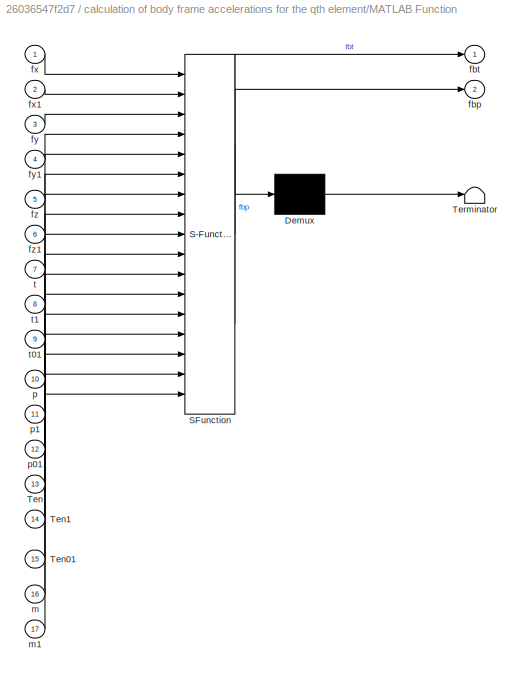
BLOCK [SubSystem] calculation of body frame accelerations for the qth element/MATLAB Function
  ErrorFcn = Stateflow.Translate.translate
  PermitHierarchicalResolution = ExplicitOnly
  Ports = [17, 2]
  RequestExecContextInheritance = off
  SFBlockType = MATLAB Function
  TreatAsAtomicUnit = on
BLOCK [Demux] calculation of body frame accelerations for the qth element/MATLAB Function/ Demux 
  Outputs = 1
  Ports = [1, 1]
BLOCK [S-Function] calculation of body frame accelerations for the qth element/MATLAB Function/ SFunction 
  EnableBusSupport = off
  FunctionName = sf_sfun
  PortCounts = [17 3]
  Ports = [17, 3]
  SFcnIsStateOwnerBlock = off
  SFunctionDeploymentMode = off
  Tag = Stateflow S-Function accelerationCalculator_ul 2
BLOCK [Terminator] calculation of body frame accelerations for the qth element/MATLAB Function/ Terminator 
BLOCK [Inport] calculation of body frame accelerations for the qth element/MATLAB Function/Ten
  IconDisplay = Port number
  Port = 13
BLOCK [Inport] calculation of body frame accelerations for the qth element/MATLAB Function/Ten01
  IconDisplay = Port number
  Port = 15
BLOCK [Inport] calculation of body frame accelerations for the qth element/MATLAB Function/Ten1
  IconDisplay = Port number
  Port = 14
BLOCK [Outport] calculation of body frame accelerations for the qth element/MATLAB Function/fbp
  IconDisplay = Port number
  Port = 2
BLOCK [Outport] calculation of body frame accelerations for the qth element/MATLAB Function/fbt
  IconDisplay = Port number
BLOCK [Inport] calculation of body frame accelerations for the qth element/MATLAB Function/fx
  IconDisplay = Port number
BLOCK [Inport] calculation of body frame accelerations for the qth element/MATLAB Function/fx1
  IconDisplay = Port number
  Port = 2
BLOCK [Inport] calculation of body frame accelerations for the qth element/MATLAB Function/fy
  IconDisplay = Port number
  Port = 3
BLOCK [Inport] calculation of body frame accelerations for the qth element/MATLAB Function/fy1
  IconDisplay = Port number
  Port = 4
BLOCK [Inport] calculation of body frame accelerations for the qth element/MATLAB Function/fz
  IconDisplay = Port number
  Port = 5
BLOCK [Inport] calculation of body frame accelerations for the qth element/MATLAB Function/fz1
  IconDisplay = Port number
  Port = 6
BLOCK [Inport] calculation of body frame accelerations for the qth element/MATLAB Function/m
  IconDisplay = Port number
  Port = 16
BLOCK [Inport] calculation of body frame accelerations for the qth element/MATLAB Function/m1
  IconDisplay = Port number
  Port = 17
BLOCK [Inport] calculation of body frame accelerations for the qth element/MATLAB Function/p
  IconDisplay = Port number
  Port = 10
BLOCK [Inport] calculation of body frame accelerations for the qth element/MATLAB Function/p01
  IconDisplay = Port number
  Port = 12
BLOCK [Inport] calculation of body frame accelerations for the qth element/MATLAB Function/p1
  IconDisplay = Port number
  Port = 11
BLOCK [Inport] calculation of body frame accelerations for the qth element/MATLAB Function/t
  IconDisplay = Port number
  Port = 7
BLOCK [Inport] calculation of body frame accelerations for the qth element/MATLAB Function/t01
  IconDisplay = Port number
  Port = 9
BLOCK [Inport] calculation of body frame accelerations for the qth element/MATLAB Function/t1
  IconDisplay = Port number
  Port = 8
BLOCK [Sum] calculation of body frame accelerations for the qth element/Minus
  Commented = on
  InputSameDT = off
  Inputs = +-+-
  OutDataTypeStr = Inherit: Inherit via internal rule
  Ports = [4, 1]
  SaturateOnIntegerOverflow = off
BLOCK [Sum] calculation of body frame accelerations for the qth element/Minus1
  Commented = on
  InputSameDT = off
  Inputs = +-+-
  OutDataTypeStr = Inherit: Inherit via internal rule
  Ports = [4, 1]
  SaturateOnIntegerOverflow = off
BLOCK [Sum] calculation of body frame accelerations for the qth element/Minus2
  InputSameDT = off
  OutDataTypeStr = Inherit: Inherit via internal rule
  Ports = [2, 1]
  SaturateOnIntegerOverflow = off
BLOCK [Sum] calculation of body frame accelerations for the qth element/Minus3
  InputSameDT = off
  Inputs = +-
  OutDataTypeStr = Inherit: Inherit via internal rule
  Ports = [2, 1]
  SaturateOnIntegerOverflow = off
BLOCK [Sum] calculation of body frame accelerations for the qth element/Plus
  Commented = on
  InputSameDT = off
  OutDataTypeStr = Inherit: Inherit via internal rule
  Ports = [2, 1]
  SaturateOnIntegerOverflow = off
BLOCK [Sum] calculation of body frame accelerations for the qth element/Plus1
  Commented = on
  InputSameDT = off
  OutDataTypeStr = Inherit: Inherit via internal rule
  Ports = [2, 1]
  SaturateOnIntegerOverflow = off
BLOCK [Sum] calculation of body frame accelerations for the qth element/Plus2
  Commented = on
  InputSameDT = off
  OutDataTypeStr = Inherit: Inherit via internal rule
  Ports = [2, 1]
  SaturateOnIntegerOverflow = off
BLOCK [Trigonometry] calculation of body frame accelerations for the qth element/Sin
  Commented = on
  Ports = [1, 1]
BLOCK [Trigonometry] calculation of body frame accelerations for the qth element/Sin1
  Commented = on
  Ports = [1, 1]
BLOCK [Trigonometry] calculation of body frame accelerations for the qth element/Sin10
  Commented = on
  Ports = [1, 1]
BLOCK [Trigonometry] calculation of body frame accelerations for the qth element/Sin11
  Commented = on
  Ports = [1, 1]
BLOCK [Trigonometry] calculation of body frame accelerations for the qth element/Sin12
  Commented = on
  Ports = [1, 1]
BLOCK [Trigonometry] calculation of body frame accelerations for the qth element/Sin13
  Commented = on
  Ports = [1, 1]
BLOCK [Trigonometry] calculation of body frame accelerations for the qth element/Sin14
  Commented = on
  Ports = [1, 1]
BLOCK [Trigonometry] calculation of body frame accelerations for the qth element/Sin15
  Commented = on
  Ports = [1, 1]
BLOCK [Trigonometry] calculation of body frame accelerations for the qth element/Sin16
  Commented = on
  Ports = [1, 1]
BLOCK [Trigonometry] calculation of body frame accelerations for the qth element/Sin17
  Commented = on
  Ports = [1, 1]
BLOCK [Trigonometry] calculation of body frame accelerations for the qth element/Sin18
  Commented = on
  Operator = cos
  Ports = [1, 1]
BLOCK [Trigonometry] calculation of body frame accelerations for the qth element/Sin19
  Commented = on
  Ports = [1, 1]
BLOCK [Trigonometry] calculation of body frame accelerations for the qth element/Sin2
  Commented = on
  Ports = [1, 1]
BLOCK [Trigonometry] calculation of body frame accelerations for the qth element/Sin20
  Commented = on
  Operator = cos
  Ports = [1, 1]
BLOCK [Trigonometry] calculation of body frame accelerations for the qth element/Sin21
  Commented = on
  Ports = [1, 1]
BLOCK [Trigonometry] calculation of body frame accelerations for the qth element/Sin22
  Commented = on
  Ports = [1, 1]
BLOCK [Trigonometry] calculation of body frame accelerations for the qth element/Sin23
  Commented = on
  Ports = [1, 1]
BLOCK [Trigonometry] calculation of body frame accelerations for the qth element/Sin24
  Commented = on
  Ports = [1, 1]
BLOCK [Trigonometry] calculation of body frame accelerations for the qth element/Sin25
  Commented = on
  Ports = [1, 1]
BLOCK [Trigonometry] calculation of body frame accelerations for the qth element/Sin26
  Commented = on
  Ports = [1, 1]
BLOCK [Trigonometry] calculation of body frame accelerations for the qth element/Sin27
  Commented = on
  Ports = [1, 1]
BLOCK [Trigonometry] calculation of body frame accelerations for the qth element/Sin28
  Commented = on
  Operator = cos
  Ports = [1, 1]
BLOCK [Trigonometry] calculation of body frame accelerations for the qth element/Sin29
  Commented = on
  Ports = [1, 1]
BLOCK [Trigonometry] calculation of body frame accelerations for the qth element/Sin3
  Commented = on
  Ports = [1, 1]
BLOCK [Trigonometry] calculation of body frame accelerations for the qth element/Sin30
  Commented = on
  Operator = cos
  Ports = [1, 1]
BLOCK [Trigonometry] calculation of body frame accelerations for the qth element/Sin31
  Commented = on
  Ports = [1, 1]
BLOCK [Trigonometry] calculation of body frame accelerations for the qth element/Sin32
  Commented = on
  Ports = [1, 1]
BLOCK [Trigonometry] calculation of body frame accelerations for the qth element/Sin33
  Commented = on
  Ports = [1, 1]
BLOCK [Trigonometry] calculation of body frame accelerations for the qth element/Sin34
  Commented = on
  Ports = [1, 1]
BLOCK [Trigonometry] calculation of body frame accelerations for the qth element/Sin35
  Commented = on
  Ports = [1, 1]
BLOCK [Trigonometry] calculation of body frame accelerations for the qth element/Sin36
  Commented = on
  Ports = [1, 1]
BLOCK [Trigonometry] calculation of body frame accelerations for the qth element/Sin37
  Commented = on
  Operator = cos
  Ports = [1, 1]
BLOCK [Trigonometry] calculation of body frame accelerations for the qth element/Sin38
  Commented = on
  Ports = [1, 1]
BLOCK [Trigonometry] calculation of body frame accelerations for the qth element/Sin39
  Commented = on
  Ports = [1, 1]
BLOCK [Trigonometry] calculation of body frame accelerations for the qth element/Sin4
  Commented = on
  Ports = [1, 1]
BLOCK [Trigonometry] calculation of body frame accelerations for the qth element/Sin40
  Commented = on
  Operator = cos
  Ports = [1, 1]
BLOCK [Trigonometry] calculation of body frame accelerations for the qth element/Sin41
  Commented = on
  Operator = cos
  Ports = [1, 1]
BLOCK [Trigonometry] calculation of body frame accelerations for the qth element/Sin42
  Commented = on
  Operator = cos
  Ports = [1, 1]
BLOCK [Trigonometry] calculation of body frame accelerations for the qth element/Sin43
  Commented = on
  Ports = [1, 1]
BLOCK [Trigonometry] calculation of body frame accelerations for the qth element/Sin44
  Commented = on
  Operator = cos
  Ports = [1, 1]
BLOCK [Trigonometry] calculation of body frame accelerations for the qth element/Sin45
  Commented = on
  Operator = cos
  Ports = [1, 1]
BLOCK [Trigonometry] calculation of body frame accelerations for the qth element/Sin46
  Commented = on
  Ports = [1, 1]
BLOCK [Trigonometry] calculation of body frame accelerations for the qth element/Sin47
  Commented = on
  Operator = cos
  Ports = [1, 1]
BLOCK [Trigonometry] calculation of body frame accelerations for the qth element/Sin48
  Commented = on
  Operator = cos
  Ports = [1, 1]
BLOCK [Trigonometry] calculation of body frame accelerations for the qth element/Sin49
  Commented = on
  Ports = [1, 1]
BLOCK [Trigonometry] calculation of body frame accelerations for the qth element/Sin5
  Commented = on
  Ports = [1, 1]
BLOCK [Trigonometry] calculation of body frame accelerations for the qth element/Sin50
  Commented = on
  Ports = [1, 1]
BLOCK [Trigonometry] calculation of body frame accelerations for the qth element/Sin51
  Commented = on
  Operator = cos
  Ports = [1, 1]
BLOCK [Trigonometry] calculation of body frame accelerations for the qth element/Sin52
  Commented = on
  Ports = [1, 1]
BLOCK [Trigonometry] calculation of body frame accelerations for the qth element/Sin53
  Commented = on
  Ports = [1, 1]
BLOCK [Trigonometry] calculation of body frame accelerations for the qth element/Sin54
  Commented = on
  Operator = cos
  Ports = [1, 1]
BLOCK [Trigonometry] calculation of body frame accelerations for the qth element/Sin55
  Commented = on
  Operator = cos
  Ports = [1, 1]
BLOCK [Trigonometry] calculation of body frame accelerations for the qth element/Sin56
  Commented = on
  Operator = cos
  Ports = [1, 1]
BLOCK [Trigonometry] calculation of body frame accelerations for the qth element/Sin57
  Commented = on
  Ports = [1, 1]
BLOCK [Trigonometry] calculation of body frame accelerations for the qth element/Sin58
  Commented = on
  Operator = cos
  Ports = [1, 1]
BLOCK [Trigonometry] calculation of body frame accelerations for the qth element/Sin59
  Commented = on
  Operator = cos
  Ports = [1, 1]
BLOCK [Trigonometry] calculation of body frame accelerations for the qth element/Sin6
  Commented = on
  Ports = [1, 1]
BLOCK [Trigonometry] calculation of body frame accelerations for the qth element/Sin60
  Commented = on
  Ports = [1, 1]
BLOCK [Trigonometry] calculation of body frame accelerations for the qth element/Sin61
  Commented = on
  Ports = [1, 1]
BLOCK [Trigonometry] calculation of body frame accelerations for the qth element/Sin62
  Ports = [1, 1]
BLOCK [Trigonometry] calculation of body frame accelerations for the qth element/Sin63
  Ports = [1, 1]
BLOCK [Trigonometry] calculation of body frame accelerations for the qth element/Sin7
  Commented = on
  Ports = [1, 1]
BLOCK [Trigonometry] calculation of body frame accelerations for the qth element/Sin8
  Commented = on
  Ports = [1, 1]
BLOCK [Trigonometry] calculation of body frame accelerations for the qth element/Sin9
  Commented = on
  Ports = [1, 1]
BLOCK [Inport] calculation of body frame accelerations for the qth element/Tq 
  IconDisplay = Port number
  Port = 7
BLOCK [Inport] calculation of body frame accelerations for the qth element/Tq01
  IconDisplay = Port number
  Port = 9
BLOCK [Inport] calculation of body frame accelerations for the qth element/Tq1
  IconDisplay = Port number
  Port = 8
BLOCK [Inport] calculation of body frame accelerations for the qth element/phi01
  IconDisplay = Port number
  Port = 13
BLOCK [Outport] calculation of body frame accelerations for the qth element/phiq
  IconDisplay = Port number
  Port = 3
BLOCK [Inport] calculation of body frame accelerations for the qth element/phiq1
  IconDisplay = Port number
  Port = 12
BLOCK [Outport] calculation of body frame accelerations for the qth element/phiqDot
  IconDisplay = Port number
  Port = 4
BLOCK [Outport] calculation of body frame accelerations for the qth element/thetaq 
  IconDisplay = Port number
BLOCK [Inport] calculation of body frame accelerations for the qth element/thetaq01
  IconDisplay = Port number
  Port = 11
BLOCK [Inport] calculation of body frame accelerations for the qth element/thetaq1
  IconDisplay = Port number
  Port = 10
BLOCK [Outport] calculation of body frame accelerations for the qth element/thetaqDot
  IconDisplay = Port number
  Port = 2
ANNOTATION calculation of body frame accelerations for the qth element: in the phi q body direction
ANNOTATION calculation of body frame accelerations for the qth element: definitions q01 = q -1 q1 = q + 1 q = q
ANNOTATION calculation of body frame accelerations for the qth element: Acceleration in the theta q body direction
ANNOTATION calculation of body frame accelerations for the qth element: Inputs
ANNOTATION calculation of body frame accelerations for the qth element: checked by James Reed
ANNOTATION calculation of body frame accelerations for the qth element: theta double dot and phi double dot
LINE calculation of body frame accelerations for the qth element/Add1:1 -> calculation of body frame accelerations for the qth element/Divide32:1
LINE calculation of body frame accelerations for the qth element/Add2:1 -> calculation of body frame accelerations for the qth element/Divide43:1
LINE calculation of body frame accelerations for the qth element/Add3:1 -> calculation of body frame accelerations for the qth element/Divide54:1
LINE calculation of body frame accelerations for the qth element/Add:1 -> calculation of body frame accelerations for the qth element/Divide21:1
LINE calculation of body frame accelerations for the qth element/Constant10:1 -> calculation of body frame accelerations for the qth element/Divide58:2
LINE calculation of body frame accelerations for the qth element/Constant11:1 -> calculation of body frame accelerations for the qth element/Divide59:1
LINE calculation of body frame accelerations for the qth element/Constant12:1 -> calculation of body frame accelerations for the qth element/Divide60:2
LINE calculation of body frame accelerations for the qth element/Constant1:1 -> calculation of body frame accelerations for the qth element/Goto16:1
LINE calculation of body frame accelerations for the qth element/Constant2:1 -> calculation of body frame accelerations for the qth element/Divide5:1
LINE calculation of body frame accelerations for the qth element/Constant3:1 -> calculation of body frame accelerations for the qth element/Divide11:1
LINE calculation of body frame accelerations for the qth element/Constant4:1 -> calculation of body frame accelerations for the qth element/Divide22:1
LINE calculation of body frame accelerations for the qth element/Constant5:1 -> calculation of body frame accelerations for the qth element/Divide33:1
LINE calculation of body frame accelerations for the qth element/Constant6:1 -> calculation of body frame accelerations for the qth element/Divide44:1
LINE calculation of body frame accelerations for the qth element/Constant7:1 -> calculation of body frame accelerations for the qth element/Divide55:1
LINE calculation of body frame accelerations for the qth element/Constant8:1 -> calculation of body frame accelerations for the qth element/Divide56:1
LINE calculation of body frame accelerations for the qth element/Constant9:1 -> calculation of body frame accelerations for the qth element/Divide56:2
LINE calculation of body frame accelerations for the qth element/Constant:1 -> calculation of body frame accelerations for the qth element/Goto15:1
LINE calculation of body frame accelerations for the qth element/Cos10:1 -> calculation of body frame accelerations for the qth element/Divide7:2
LINE calculation of body frame accelerations for the qth element/Cos11:1 -> calculation of body frame accelerations for the qth element/Divide14:4
LINE calculation of body frame accelerations for the qth element/Cos12:1 -> calculation of body frame accelerations for the qth element/Divide15:2
LINE calculation of body frame accelerations for the qth element/Cos13:1 -> calculation of body frame accelerations for the qth element/Divide16:3
LINE calculation of body frame accelerations for the qth element/Cos14:1 -> calculation of body frame accelerations for the qth element/Divide17:3
LINE calculation of body frame accelerations for the qth element/Cos15:1 -> calculation of body frame accelerations for the qth element/Divide18:3
LINE calculation of body frame accelerations for the qth element/Cos16:1 -> calculation of body frame accelerations for the qth element/Divide19:4
LINE calculation of body frame accelerations for the qth element/Cos17:1 -> calculation of body frame accelerations for the qth element/Divide20:4
LINE calculation of body frame accelerations for the qth element/Cos18:1 -> calculation of body frame accelerations for the qth element/Divide19:2
LINE calculation of body frame accelerations for the qth element/Cos19:1 -> calculation of body frame accelerations for the qth element/Divide20:2
LINE calculation of body frame accelerations for the qth element/Cos1:1 -> calculation of body frame accelerations for the qth element/Divide2:2
LINE calculation of body frame accelerations for the qth element/Cos20:1 -> calculation of body frame accelerations for the qth element/Divide20:3
LINE calculation of body frame accelerations for the qth element/Cos21:1 -> calculation of body frame accelerations for the qth element/Divide25:4
LINE calculation of body frame accelerations for the qth element/Cos22:1 -> calculation of body frame accelerations for the qth element/Divide26:2
LINE calculation of body frame accelerations for the qth element/Cos23:1 -> calculation of body frame accelerations for the qth element/Divide27:3
LINE calculation of body frame accelerations for the qth element/Cos24:1 -> calculation of body frame accelerations for the qth element/Divide28:3
LINE calculation of body frame accelerations for the qth element/Cos25:1 -> calculation of body frame accelerations for the qth element/Divide29:3
LINE calculation of body frame accelerations for the qth element/Cos26:1 -> calculation of body frame accelerations for the qth element/Divide31:3
LINE calculation of body frame accelerations for the qth element/Cos27:1 -> calculation of body frame accelerations for the qth element/Divide31:4
LINE calculation of body frame accelerations for the qth element/Cos28:1 -> calculation of body frame accelerations for the qth element/Divide30:2
LINE calculation of body frame accelerations for the qth element/Cos29:1 -> calculation of body frame accelerations for the qth element/Divide31:2
LINE calculation of body frame accelerations for the qth element/Cos2:1 -> calculation of body frame accelerations for the qth element/Divide2:3
LINE calculation of body frame accelerations for the qth element/Cos30:1 -> calculation of body frame accelerations for the qth element/Divide36:4
LINE calculation of body frame accelerations for the qth element/Cos31:1 -> calculation of body frame accelerations for the qth element/Divide24:4
LINE calculation of body frame accelerations for the qth element/Cos32:1 -> calculation of body frame accelerations for the qth element/Divide30:3
LINE calculation of body frame accelerations for the qth element/Cos33:1 -> calculation of body frame accelerations for the qth element/Divide37:2
LINE calculation of body frame accelerations for the qth element/Cos34:1 -> calculation of body frame accelerations for the qth element/Divide38:3
LINE calculation of body frame accelerations for the qth element/Cos35:1 -> calculation of body frame accelerations for the qth element/Divide39:3
LINE calculation of body frame accelerations for the qth element/Cos36:1 -> calculation of body frame accelerations for the qth element/Divide40:3
LINE calculation of body frame accelerations for the qth element/Cos37:1 -> calculation of body frame accelerations for the qth element/Divide41:4
LINE calculation of body frame accelerations for the qth element/Cos38:1 -> calculation of body frame accelerations for the qth element/Divide42:4
LINE calculation of body frame accelerations for the qth element/Cos39:1 -> calculation of body frame accelerations for the qth element/Divide41:2
LINE calculation of body frame accelerations for the qth element/Cos3:1 -> calculation of body frame accelerations for the qth element/Divide3:4
LINE calculation of body frame accelerations for the qth element/Cos40:1 -> calculation of body frame accelerations for the qth element/Divide42:2
LINE calculation of body frame accelerations for the qth element/Cos41:1 -> calculation of body frame accelerations for the qth element/Divide42:3
LINE calculation of body frame accelerations for the qth element/Cos42:1 -> calculation of body frame accelerations for the qth element/Divide35:4
LINE calculation of body frame accelerations for the qth element/Cos43:1 -> calculation of body frame accelerations for the qth element/Divide47:4
LINE calculation of body frame accelerations for the qth element/Cos44:1 -> calculation of body frame accelerations for the qth element/Divide48:2
LINE calculation of body frame accelerations for the qth element/Cos45:1 -> calculation of body frame accelerations for the qth element/Divide49:3
LINE calculation of body frame accelerations for the qth element/Cos46:1 -> calculation of body frame accelerations for the qth element/Divide50:3
LINE calculation of body frame accelerations for the qth element/Cos47:1 -> calculation of body frame accelerations for the qth element/Divide51:3
LINE calculation of body frame accelerations for the qth element/Cos48:1 -> calculation of body frame accelerations for the qth element/Divide53:3
LINE calculation of body frame accelerations for the qth element/Cos49:1 -> calculation of body frame accelerations for the qth element/Divide53:4
LINE calculation of body frame accelerations for the qth element/Cos4:1 -> calculation of body frame accelerations for the qth element/Divide3:3
LINE calculation of body frame accelerations for the qth element/Cos50:1 -> calculation of body frame accelerations for the qth element/Divide52:2
LINE calculation of body frame accelerations for the qth element/Cos51:1 -> calculation of body frame accelerations for the qth element/Divide53:2
LINE calculation of body frame accelerations for the qth element/Cos52:1 -> calculation of body frame accelerations for the qth element/Divide46:4
LINE calculation of body frame accelerations for the qth element/Cos53:1 -> calculation of body frame accelerations for the qth element/Divide52:3
LINE calculation of body frame accelerations for the qth element/Cos54:1 -> calculation of body frame accelerations for the qth element/Divide58:1
LINE calculation of body frame accelerations for the qth element/Cos55:1 -> calculation of body frame accelerations for the qth element/Divide59:5
LINE calculation of body frame accelerations for the qth element/Cos5:1 -> calculation of body frame accelerations for the qth element/Divide13:4
LINE calculation of body frame accelerations for the qth element/Cos6:1 -> calculation of body frame accelerations for the qth element/Divide8:2
LINE calculation of body frame accelerations for the qth element/Cos7:1 -> calculation of body frame accelerations for the qth element/Divide8:3
LINE calculation of body frame accelerations for the qth element/Cos8:1 -> calculation of body frame accelerations for the qth element/Divide9:4
LINE calculation of body frame accelerations for the qth element/Cos9:1 -> calculation of body frame accelerations for the qth element/Divide9:3
LINE calculation of body frame accelerations for the qth element/Cos:1 -> calculation of body frame accelerations for the qth element/Divide:2
LINE calculation of body frame accelerations for the qth element/Divide10:1 -> calculation of body frame accelerations for the qth element/Goto18:1
LINE calculation of body frame accelerations for the qth element/Divide11:1 -> calculation of body frame accelerations for the qth element/Divide10:2
LINE calculation of body frame accelerations for the qth element/Divide12:1 -> calculation of body frame accelerations for the qth element/Add:1
LINE calculation of body frame accelerations for the qth element/Divide13:1 -> calculation of body frame accelerations for the qth element/Add:2
LINE calculation of body frame accelerations for the qth element/Divide14:1 -> calculation of body frame accelerations for the qth element/Add:3
LINE calculation of body frame accelerations for the qth element/Divide15:1 -> calculation of body frame accelerations for the qth element/Add:4
LINE calculation of body frame accelerations for the qth element/Divide16:1 -> calculation of body frame accelerations for the qth element/Add:5
LINE calculation of body frame accelerations for the qth element/Divide17:1 -> calculation of body frame accelerations for the qth element/Add:6
LINE calculation of body frame accelerations for the qth element/Divide18:1 -> calculation of body frame accelerations for the qth element/Add:7
LINE calculation of body frame accelerations for the qth element/Divide19:1 -> calculation of body frame accelerations for the qth element/Add:8
LINE calculation of body frame accelerations for the qth element/Divide1:1 -> calculation of body frame accelerations for the qth element/Minus:2
LINE calculation of body frame accelerations for the qth element/Divide20:1 -> calculation of body frame accelerations for the qth element/Add:9
LINE calculation of body frame accelerations for the qth element/Divide21:1 -> calculation of body frame accelerations for the qth element/Goto19:1
LINE calculation of body frame accelerations for the qth element/Divide22:1 -> calculation of body frame accelerations for the qth element/Divide21:2
LINE calculation of body frame accelerations for the qth element/Divide23:1 -> calculation of body frame accelerations for the qth element/Add1:1
LINE calculation of body frame accelerations for the qth element/Divide24:1 -> calculation of body frame accelerations for the qth element/Add1:2
LINE calculation of body frame accelerations for the qth element/Divide25:1 -> calculation of body frame accelerations for the qth element/Add1:3
LINE calculation of body frame accelerations for the qth element/Divide26:1 -> calculation of body frame accelerations for the qth element/Add1:4
LINE calculation of body frame accelerations for the qth element/Divide27:1 -> calculation of body frame accelerations for the qth element/Add1:5
LINE calculation of body frame accelerations for the qth element/Divide28:1 -> calculation of body frame accelerations for the qth element/Add1:6
LINE calculation of body frame accelerations for the qth element/Divide29:1 -> calculation of body frame accelerations for the qth element/Add1:7
LINE calculation of body frame accelerations for the qth element/Divide2:1 -> calculation of body frame accelerations for the qth element/Minus:3
LINE calculation of body frame accelerations for the qth element/Divide30:1 -> calculation of body frame accelerations for the qth element/Add1:8
LINE calculation of body frame accelerations for the qth element/Divide31:1 -> calculation of body frame accelerations for the qth element/Add1:9
LINE calculation of body frame accelerations for the qth element/Divide32:1 -> calculation of body frame accelerations for the qth element/Goto20:1
LINE calculation of body frame accelerations for the qth element/Divide33:1 -> calculation of body frame accelerations for the qth element/Divide32:2
LINE calculation of body frame accelerations for the qth element/Divide34:1 -> calculation of body frame accelerations for the qth element/Add2:1
LINE calculation of body frame accelerations for the qth element/Divide35:1 -> calculation of body frame accelerations for the qth element/Add2:2
LINE calculation of body frame accelerations for the qth element/Divide36:1 -> calculation of body frame accelerations for the qth element/Add2:3
LINE calculation of body frame accelerations for the qth element/Divide37:1 -> calculation of body frame accelerations for the qth element/Add2:4
LINE calculation of body frame accelerations for the qth element/Divide38:1 -> calculation of body frame accelerations for the qth element/Add2:5
LINE calculation of body frame accelerations for the qth element/Divide39:1 -> calculation of body frame accelerations for the qth element/Add2:6
LINE calculation of body frame accelerations for the qth element/Divide3:1 -> calculation of body frame accelerations for the qth element/Minus:4
LINE calculation of body frame accelerations for the qth element/Divide40:1 -> calculation of body frame accelerations for the qth element/Add2:7
LINE calculation of body frame accelerations for the qth element/Divide41:1 -> calculation of body frame accelerations for the qth element/Add2:8
LINE calculation of body frame accelerations for the qth element/Divide42:1 -> calculation of body frame accelerations for the qth element/Add2:9
LINE calculation of body frame accelerations for the qth element/Divide43:1 -> calculation of body frame accelerations for the qth element/Goto21:1
LINE calculation of body frame accelerations for the qth element/Divide44:1 -> calculation of body frame accelerations for the qth element/Divide43:2
LINE calculation of body frame accelerations for the qth element/Divide45:1 -> calculation of body frame accelerations for the qth element/Add3:1
LINE calculation of body frame accelerations for the qth element/Divide46:1 -> calculation of body frame accelerations for the qth element/Add3:2
LINE calculation of body frame accelerations for the qth element/Divide47:1 -> calculation of body frame accelerations for the qth element/Add3:3
LINE calculation of body frame accelerations for the qth element/Divide48:1 -> calculation of body frame accelerations for the qth element/Add3:4
LINE calculation of body frame accelerations for the qth element/Divide49:1 -> calculation of body frame accelerations for the qth element/Add3:5
LINE calculation of body frame accelerations for the qth element/Divide4:1 -> calculation of body frame accelerations for the qth element/Goto17:1
LINE calculation of body frame accelerations for the qth element/Divide50:1 -> calculation of body frame accelerations for the qth element/Add3:6
LINE calculation of body frame accelerations for the qth element/Divide51:1 -> calculation of body frame accelerations for the qth element/Add3:7
LINE calculation of body frame accelerations for the qth element/Divide52:1 -> calculation of body frame accelerations for the qth element/Add3:8
LINE calculation of body frame accelerations for the qth element/Divide53:1 -> calculation of body frame accelerations for the qth element/Add3:9
LINE calculation of body frame accelerations for the qth element/Divide54:1 -> calculation of body frame accelerations for the qth element/Goto22:1
LINE calculation of body frame accelerations for the qth element/Divide55:1 -> calculation of body frame accelerations for the qth element/Divide54:2
LINE calculation of body frame accelerations for the qth element/Divide56:1 -> calculation of body frame accelerations for the qth element/Minus2:2
LINE calculation of body frame accelerations for the qth element/Divide57:1 -> calculation of body frame accelerations for the qth element/Integrator:1
LINE calculation of body frame accelerations for the qth element/Divide58:1 -> calculation of body frame accelerations for the qth element/Divide57:2
LINE calculation of body frame accelerations for the qth element/Divide59:1 -> calculation of body frame accelerations for the qth element/Minus3:2
LINE calculation of body frame accelerations for the qth element/Divide5:1 -> calculation of body frame accelerations for the qth element/Divide4:2
LINE calculation of body frame accelerations for the qth element/Divide60:1 -> calculation of body frame accelerations for the qth element/Integrator2:1
LINE calculation of body frame accelerations for the qth element/Divide6:1 -> calculation of body frame accelerations for the qth element/Minus1:1
LINE calculation of body frame accelerations for the qth element/Divide7:1 -> calculation of body frame accelerations for the qth element/Minus1:2
LINE calculation of body frame accelerations for the qth element/Divide8:1 -> calculation of body frame accelerations for the qth element/Minus1:3
LINE calculation of body frame accelerations for the qth element/Divide9:1 -> calculation of body frame accelerations for the qth element/Minus1:4
LINE calculation of body frame accelerations for the qth element/Divide:1 -> calculation of body frame accelerations for the qth element/Minus:1
LINE calculation of body frame accelerations for the qth element/From100:1 -> calculation of body frame accelerations for the qth element/Sin21:1
LINE calculation of body frame accelerations for the qth element/From101:1 -> calculation of body frame accelerations for the qth element/Divide34:1
LINE calculation of body frame accelerations for the qth element/From102:1 -> calculation of body frame accelerations for the qth element/Sin43:1
LINE calculation of body frame accelerations for the qth element/From103:1 -> calculation of body frame accelerations for the qth element/Sin45:1
LINE calculation of body frame accelerations for the qth element/From104:1 -> calculation of body frame accelerations for the qth element/Divide35:1
LINE calculation of body frame accelerations for the qth element/From105:1 -> calculation of body frame accelerations for the qth element/Cos42:1
LINE calculation of body frame accelerations for the qth element/From106:1 -> calculation of body frame accelerations for the qth element/Sin47:1
LINE calculation of body frame accelerations for the qth element/From107:1 -> calculation of body frame accelerations for the qth element/Sin46:1
LINE calculation of body frame accelerations for the qth element/From108:1 -> calculation of body frame accelerations for the qth element/Sin34:1
LINE calculation of body frame accelerations for the qth element/From109:1 -> calculation of body frame accelerations for the qth element/Divide36:1
LINE calculation of body frame accelerations for the qth element/From10:1 -> calculation of body frame accelerations for the qth element/Divide3:1
LINE calculation of body frame accelerations for the qth element/From110:1 -> calculation of body frame accelerations for the qth element/Cos30:1
LINE calculation of body frame accelerations for the qth element/From111:1 -> calculation of body frame accelerations for the qth element/Sin37:1
LINE calculation of body frame accelerations for the qth element/From112:1 -> calculation of body frame accelerations for the qth element/Sin36:1
LINE calculation of body frame accelerations for the qth element/From113:1 -> calculation of body frame accelerations for the qth element/Sin35:1
LINE calculation of body frame accelerations for the qth element/From114:1 -> calculation of body frame accelerations for the qth element/Divide37:1
LINE calculation of body frame accelerations for the qth element/From115:1 -> calculation of body frame accelerations for the qth element/Cos33:1
LINE calculation of body frame accelerations for the qth element/From116:1 -> calculation of body frame accelerations for the qth element/Divide38:1
LINE calculation of body frame accelerations for the qth element/From117:1 -> calculation of body frame accelerations for the qth element/Sin38:1
LINE calculation of body frame accelerations for the qth element/From118:1 -> calculation of body frame accelerations for the qth element/Cos34:1
LINE calculation of body frame accelerations for the qth element/From119:1 -> calculation of body frame accelerations for the qth element/Divide39:1
LINE calculation of body frame accelerations for the qth element/From11:1 -> calculation of body frame accelerations for the qth element/Cos3:1
LINE calculation of body frame accelerations for the qth element/From120:1 -> calculation of body frame accelerations for the qth element/Sin39:1
LINE calculation of body frame accelerations for the qth element/From121:1 -> calculation of body frame accelerations for the qth element/Cos35:1
LINE calculation of body frame accelerations for the qth element/From122:1 -> calculation of body frame accelerations for the qth element/Cos36:1
LINE calculation of body frame accelerations for the qth element/From123:1 -> calculation of body frame accelerations for the qth element/Sin40:1
LINE calculation of body frame accelerations for the qth element/From124:1 -> calculation of body frame accelerations for the qth element/Divide41:1
LINE calculation of body frame accelerations for the qth element/From125:1 -> calculation of body frame accelerations for the qth element/Divide40:1
LINE calculation of body frame accelerations for the qth element/From126:1 -> calculation of body frame accelerations for the qth element/Cos37:1
LINE calculation of body frame accelerations for the qth element/From127:1 -> calculation of body frame accelerations for the qth element/Sin41:1
LINE calculation of body frame accelerations for the qth element/From128:1 -> calculation of body frame accelerations for the qth element/Cos39:1
LINE calculation of body frame accelerations for the qth element/From129:1 -> calculation of body frame accelerations for the qth element/Sin42:1
LINE calculation of body frame accelerations for the qth element/From12:1 -> calculation of body frame accelerations for the qth element/Divide5:2
LINE calculation of body frame accelerations for the qth element/From130:1 -> calculation of body frame accelerations for the qth element/Divide42:1
LINE calculation of body frame accelerations for the qth element/From131:1 -> calculation of body frame accelerations for the qth element/Cos38:1
LINE calculation of body frame accelerations for the qth element/From132:1 -> calculation of body frame accelerations for the qth element/Cos41:1
LINE calculation of body frame accelerations for the qth element/From133:1 -> calculation of body frame accelerations for the qth element/Cos40:1
LINE calculation of body frame accelerations for the qth element/From134:1 -> calculation of body frame accelerations for the qth element/Sin44:1
LINE calculation of body frame accelerations for the qth element/From135:1 -> calculation of body frame accelerations for the qth element/Divide44:2
LINE calculation of body frame accelerations for the qth element/From136:1 -> calculation of body frame accelerations for the qth element/Sin49:1
LINE calculation of body frame accelerations for the qth element/From137:1 -> calculation of body frame accelerations for the qth element/Divide45:1
LINE calculation of body frame accelerations for the qth element/From138:1 -> calculation of body frame accelerations for the qth element/Sin57:1
LINE calculation of body frame accelerations for the qth element/From139:1 -> calculation of body frame accelerations for the qth element/Sin59:1
LINE calculation of body frame accelerations for the qth element/From13:1 -> calculation of body frame accelerations for the qth element/Divide7:1
LINE calculation of body frame accelerations for the qth element/From140:1 -> calculation of body frame accelerations for the qth element/Divide46:1
LINE calculation of body frame accelerations for the qth element/From141:1 -> calculation of body frame accelerations for the qth element/Sin48:1
LINE calculation of body frame accelerations for the qth element/From142:1 -> calculation of body frame accelerations for the qth element/Sin61:1
LINE calculation of body frame accelerations for the qth element/From143:1 -> calculation of body frame accelerations for the qth element/Sin60:1
LINE calculation of body frame accelerations for the qth element/From144:1 -> calculation of body frame accelerations for the qth element/Cos52:1
LINE calculation of body frame accelerations for the qth element/From145:1 -> calculation of body frame accelerations for the qth element/Divide55:2
LINE calculation of body frame accelerations for the qth element/From146:1 -> calculation of body frame accelerations for the qth element/Divide48:1
LINE calculation of body frame accelerations for the qth element/From147:1 -> calculation of body frame accelerations for the qth element/Sin51:1
LINE calculation of body frame accelerations for the qth element/From148:1 -> calculation of body frame accelerations for the qth element/Sin50:1
LINE calculation of body frame accelerations for the qth element/From149:1 -> calculation of body frame accelerations for the qth element/Divide49:1
LINE calculation of body frame accelerations for the qth element/From14:1 -> calculation of body frame accelerations for the qth element/Sin6:1
LINE calculation of body frame accelerations for the qth element/From150:1 -> calculation of body frame accelerations for the qth element/Sin52:1
LINE calculation of body frame accelerations for the qth element/From151:1 -> calculation of body frame accelerations for the qth element/Cos44:1
LINE calculation of body frame accelerations for the qth element/From152:1 -> calculation of body frame accelerations for the qth element/Divide50:1
LINE calculation of body frame accelerations for the qth element/From153:1 -> calculation of body frame accelerations for the qth element/Sin53:1
LINE calculation of body frame accelerations for the qth element/From154:1 -> calculation of body frame accelerations for the qth element/Cos45:1
LINE calculation of body frame accelerations for the qth element/From155:1 -> calculation of body frame accelerations for the qth element/Divide51:1
LINE calculation of body frame accelerations for the qth element/From156:1 -> calculation of body frame accelerations for the qth element/Divide52:1
LINE calculation of body frame accelerations for the qth element/From157:1 -> calculation of body frame accelerations for the qth element/Cos46:1
LINE calculation of body frame accelerations for the qth element/From158:1 -> calculation of body frame accelerations for the qth element/Cos47:1
LINE calculation of body frame accelerations for the qth element/From159:1 -> calculation of body frame accelerations for the qth element/Sin54:1
LINE calculation of body frame accelerations for the qth element/From15:1 -> calculation of body frame accelerations for the qth element/Divide9:1
LINE calculation of body frame accelerations for the qth element/From160:1 -> calculation of body frame accelerations for the qth element/Cos50:1
LINE calculation of body frame accelerations for the qth element/From161:1 -> calculation of body frame accelerations for the qth element/Sin55:1
LINE calculation of body frame accelerations for the qth element/From162:1 -> calculation of body frame accelerations for the qth element/Sin56:1
LINE calculation of body frame accelerations for the qth element/From163:1 -> calculation of body frame accelerations for the qth element/Divide53:1
LINE calculation of body frame accelerations for the qth element/From164:1 -> calculation of body frame accelerations for the qth element/Cos53:1
LINE calculation of body frame accelerations for the qth element/From165:1 -> calculation of body frame accelerations for the qth element/Cos48:1
LINE calculation of body frame accelerations for the qth element/From166:1 -> calculation of body frame accelerations for the qth element/Cos49:1
LINE calculation of body frame accelerations for the qth element/From167:1 -> calculation of body frame accelerations for the qth element/Gain:1
LINE calculation of body frame accelerations for the qth element/From168:1 -> calculation of body frame accelerations for the qth element/Sin58:1
LINE calculation of body frame accelerations for the qth element/From169:1 -> calculation of body frame accelerations for the qth element/Cos51:1
LINE calculation of body frame accelerations for the qth element/From16:1 -> calculation of body frame accelerations for the qth element/Cos9:1
LINE calculation of body frame accelerations for the qth element/From170:1 -> calculation of body frame accelerations for the qth element/Plus2:2
LINE calculation of body frame accelerations for the qth element/From171:1 -> calculation of body frame accelerations for the qth element/Cos43:1
LINE calculation of body frame accelerations for the qth element/From172:1 -> calculation of body frame accelerations for the qth element/Divide47:1
LINE calculation of body frame accelerations for the qth element/From173:1 -> calculation of body frame accelerations for the qth element/Plus2:1
LINE calculation of body frame accelerations for the qth element/From174:1 -> calculation of body frame accelerations for the qth element/Divide56:3
LINE calculation of body frame accelerations for the qth element/From175:1 -> calculation of body frame accelerations for the qth element/Divide56:4
LINE calculation of body frame accelerations for the qth element/From176:1 -> calculation of body frame accelerations for the qth element/Sin62:1
LINE calculation of body frame accelerations for the qth element/From177:1 -> calculation of body frame accelerations for the qth element/Cos54:1
LINE calculation of body frame accelerations for the qth element/From178:1 -> calculation of body frame accelerations for the qth element/Minus3:1
LINE calculation of body frame accelerations for the qth element/From179:1 -> calculation of body frame accelerations for the qth element/Divide59:2
LINE calculation of body frame accelerations for the qth element/From17:1 -> calculation of body frame accelerations for the qth element/Divide8:1
LINE calculation of body frame accelerations for the qth element/From180:1 -> calculation of body frame accelerations for the qth element/Divide59:3
LINE calculation of body frame accelerations for the qth element/From181:1 -> calculation of body frame accelerations for the qth element/Sin63:1
LINE calculation of body frame accelerations for the qth element/From182:1 -> calculation of body frame accelerations for the qth element/Cos55:1
LINE calculation of body frame accelerations for the qth element/From183:1 -> calculation of body frame accelerations for the qth element/MATLAB Function:3
LINE calculation of body frame accelerations for the qth element/From184:1 -> calculation of body frame accelerations for the qth element/MATLAB Function:5
LINE calculation of body frame accelerations for the qth element/From185:1 -> calculation of body frame accelerations for the qth element/MATLAB Function:13
LINE calculation of body frame accelerations for the qth element/From186:1 -> calculation of body frame accelerations for the qth element/MATLAB Function:14
LINE calculation of body frame accelerations for the qth element/From187:1 -> calculation of body frame accelerations for the qth element/MATLAB Function:15
LINE calculation of body frame accelerations for the qth element/From188:1 -> calculation of body frame accelerations for the qth element/MATLAB Function:16
LINE calculation of body frame accelerations for the qth element/From189:1 -> calculation of body frame accelerations for the qth element/MATLAB Function:17
LINE calculation of body frame accelerations for the qth element/From18:1 -> calculation of body frame accelerations for the qth element/Cos10:1
LINE calculation of body frame accelerations for the qth element/From190:1 -> calculation of body frame accelerations for the qth element/MATLAB Function:8
LINE calculation of body frame accelerations for the qth element/From191:1 -> calculation of body frame accelerations for the qth element/MATLAB Function:9
LINE calculation of body frame accelerations for the qth element/From192:1 -> calculation of body frame accelerations for the qth element/MATLAB Function:2
LINE calculation of body frame accelerations for the qth element/From193:1 -> calculation of body frame accelerations for the qth element/MATLAB Function:4
LINE calculation of body frame accelerations for the qth element/From194:1 -> calculation of body frame accelerations for the qth element/MATLAB Function:6
LINE calculation of body frame accelerations for the qth element/From195:1 -> calculation of body frame accelerations for the qth element/MATLAB Function:11
LINE calculation of body frame accelerations for the qth element/From196:1 -> calculation of body frame accelerations for the qth element/MATLAB Function:12
LINE calculation of body frame accelerations for the qth element/From197:1 -> calculation of body frame accelerations for the qth element/MATLAB Function:7
LINE calculation of body frame accelerations for the qth element/From198:1 -> calculation of body frame accelerations for the qth element/MATLAB Function:10
LINE calculation of body frame accelerations for the qth element/From19:1 -> calculation of body frame accelerations for the qth element/Cos7:1
LINE calculation of body frame accelerations for the qth element/From1:1 -> calculation of body frame accelerations for the qth element/Cos:1
LINE calculation of body frame accelerations for the qth element/From20:1 -> calculation of body frame accelerations for the qth element/Cos6:1
LINE calculation of body frame accelerations for the qth element/From21:1 -> calculation of body frame accelerations for the qth element/Sin4:1
LINE calculation of body frame accelerations for the qth element/From22:1 -> calculation of body frame accelerations for the qth element/Cos8:1
LINE calculation of body frame accelerations for the qth element/From23:1 -> calculation of body frame accelerations for the qth element/Divide11:2
LINE calculation of body frame accelerations for the qth element/From24:1 -> calculation of body frame accelerations for the qth element/Sin5:1
LINE calculation of body frame accelerations for the qth element/From25:1 -> calculation of body frame accelerations for the qth element/Divide6:1
LINE calculation of body frame accelerations for the qth element/From26:1 -> calculation of body frame accelerations for the qth element/Plus:1
LINE calculation of body frame accelerations for the qth element/From27:1 -> calculation of body frame accelerations for the qth element/Plus:2
LINE calculation of body frame accelerations for the qth element/From28:1 -> calculation of body frame accelerations for the qth element/Divide12:1
LINE calculation of body frame accelerations for the qth element/From29:1 -> calculation of body frame accelerations for the qth element/Sin2:1
LINE calculation of body frame accelerations for the qth element/From2:1 -> calculation of body frame accelerations for the qth element/Divide1:1
LINE calculation of body frame accelerations for the qth element/From30:1 -> calculation of body frame accelerations for the qth element/Sin7:1
LINE calculation of body frame accelerations for the qth element/From31:1 -> calculation of body frame accelerations for the qth element/Divide13:1
LINE calculation of body frame accelerations for the qth element/From32:1 -> calculation of body frame accelerations for the qth element/Cos5:1
LINE calculation of body frame accelerations for the qth element/From33:1 -> calculation of body frame accelerations for the qth element/Sin9:1
LINE calculation of body frame accelerations for the qth element/From34:1 -> calculation of body frame accelerations for the qth element/Sin8:1
LINE calculation of body frame accelerations for the qth element/From35:1 -> calculation of body frame accelerations for the qth element/Sin10:1
LINE calculation of body frame accelerations for the qth element/From36:1 -> calculation of body frame accelerations for the qth element/Divide14:1
LINE calculation of body frame accelerations for the qth element/From37:1 -> calculation of body frame accelerations for the qth element/Cos11:1
LINE calculation of body frame accelerations for the qth element/From38:1 -> calculation of body frame accelerations for the qth element/Sin13:1
LINE calculation of body frame accelerations for the qth element/From39:1 -> calculation of body frame accelerations for the qth element/Sin12:1
LINE calculation of body frame accelerations for the qth element/From3:1 -> calculation of body frame accelerations for the qth element/Sin:1
LINE calculation of body frame accelerations for the qth element/From40:1 -> calculation of body frame accelerations for the qth element/Sin11:1
LINE calculation of body frame accelerations for the qth element/From41:1 -> calculation of body frame accelerations for the qth element/Divide15:1
LINE calculation of body frame accelerations for the qth element/From42:1 -> calculation of body frame accelerations for the qth element/Cos12:1
LINE calculation of body frame accelerations for the qth element/From43:1 -> calculation of body frame accelerations for the qth element/Divide16:1
LINE calculation of body frame accelerations for the qth element/From44:1 -> calculation of body frame accelerations for the qth element/Sin14:1
LINE calculation of body frame accelerations for the qth element/From45:1 -> calculation of body frame accelerations for the qth element/Cos13:1
LINE calculation of body frame accelerations for the qth element/From46:1 -> calculation of body frame accelerations for the qth element/Divide17:1
LINE calculation of body frame accelerations for the qth element/From47:1 -> calculation of body frame accelerations for the qth element/Sin15:1
LINE calculation of body frame accelerations for the qth element/From48:1 -> calculation of body frame accelerations for the qth element/Cos14:1
LINE calculation of body frame accelerations for the qth element/From49:1 -> calculation of body frame accelerations for the qth element/Cos15:1
LINE calculation of body frame accelerations for the qth element/From4:1 -> calculation of body frame accelerations for the qth element/Cos2:1
LINE calculation of body frame accelerations for the qth element/From50:1 -> calculation of body frame accelerations for the qth element/Sin16:1
LINE calculation of body frame accelerations for the qth element/From51:1 -> calculation of body frame accelerations for the qth element/Divide19:1
LINE calculation of body frame accelerations for the qth element/From52:1 -> calculation of body frame accelerations for the qth element/Divide18:1
LINE calculation of body frame accelerations for the qth element/From53:1 -> calculation of body frame accelerations for the qth element/Cos16:1
LINE calculation of body frame accelerations for the qth element/From54:1 -> calculation of body frame accelerations for the qth element/Sin17:1
LINE calculation of body frame accelerations for the qth element/From55:1 -> calculation of body frame accelerations for the qth element/Cos18:1
LINE calculation of body frame accelerations for the qth element/From56:1 -> calculation of body frame accelerations for the qth element/Sin18:1
LINE calculation of body frame accelerations for the qth element/From57:1 -> calculation of body frame accelerations for the qth element/MATLAB Function:1
LINE calculation of body frame accelerations for the qth element/From58:1 -> calculation of body frame accelerations for the qth element/Divide20:1
LINE calculation of body frame accelerations for the qth element/From59:1 -> calculation of body frame accelerations for the qth element/Cos17:1
LINE calculation of body frame accelerations for the qth element/From5:1 -> calculation of body frame accelerations for the qth element/Cos1:1
LINE calculation of body frame accelerations for the qth element/From60:1 -> calculation of body frame accelerations for the qth element/Cos20:1
LINE calculation of body frame accelerations for the qth element/From61:1 -> calculation of body frame accelerations for the qth element/Cos19:1
LINE calculation of body frame accelerations for the qth element/From62:1 -> calculation of body frame accelerations for the qth element/Sin20:1
LINE calculation of body frame accelerations for the qth element/From63:1 -> calculation of body frame accelerations for the qth element/Divide22:2
LINE calculation of body frame accelerations for the qth element/From64:1 -> calculation of body frame accelerations for the qth element/Divide23:1
LINE calculation of body frame accelerations for the qth element/From65:1 -> calculation of body frame accelerations for the qth element/Sin29:1
LINE calculation of body frame accelerations for the qth element/From66:1 -> calculation of body frame accelerations for the qth element/Sin31:1
LINE calculation of body frame accelerations for the qth element/From67:1 -> calculation of body frame accelerations for the qth element/Divide24:1
LINE calculation of body frame accelerations for the qth element/From68:1 -> calculation of body frame accelerations for the qth element/Sin19:1
LINE calculation of body frame accelerations for the qth element/From69:1 -> calculation of body frame accelerations for the qth element/Sin33:1
LINE calculation of body frame accelerations for the qth element/From6:1 -> calculation of body frame accelerations for the qth element/Divide2:1
LINE calculation of body frame accelerations for the qth element/From70:1 -> calculation of body frame accelerations for the qth element/Sin32:1
LINE calculation of body frame accelerations for the qth element/From71:1 -> calculation of body frame accelerations for the qth element/Cos31:1
LINE calculation of body frame accelerations for the qth element/From72:1 -> calculation of body frame accelerations for the qth element/Divide33:2
LINE calculation of body frame accelerations for the qth element/From73:1 -> calculation of body frame accelerations for the qth element/Divide26:1
LINE calculation of body frame accelerations for the qth element/From74:1 -> calculation of body frame accelerations for the qth element/Sin23:1
LINE calculation of body frame accelerations for the qth element/From75:1 -> calculation of body frame accelerations for the qth element/Sin22:1
LINE calculation of body frame accelerations for the qth element/From76:1 -> calculation of body frame accelerations for the qth element/Divide27:1
LINE calculation of body frame accelerations for the qth element/From77:1 -> calculation of body frame accelerations for the qth element/Sin24:1
LINE calculation of body frame accelerations for the qth element/From78:1 -> calculation of body frame accelerations for the qth element/Cos22:1
LINE calculation of body frame accelerations for the qth element/From79:1 -> calculation of body frame accelerations for the qth element/Divide28:1
LINE calculation of body frame accelerations for the qth element/From7:1 -> calculation of body frame accelerations for the qth element/Sin1:1
LINE calculation of body frame accelerations for the qth element/From80:1 -> calculation of body frame accelerations for the qth element/Sin25:1
LINE calculation of body frame accelerations for the qth element/From81:1 -> calculation of body frame accelerations for the qth element/Cos23:1
LINE calculation of body frame accelerations for the qth element/From82:1 -> calculation of body frame accelerations for the qth element/Divide29:1
LINE calculation of body frame accelerations for the qth element/From83:1 -> calculation of body frame accelerations for the qth element/Divide30:1
LINE calculation of body frame accelerations for the qth element/From84:1 -> calculation of body frame accelerations for the qth element/Cos24:1
LINE calculation of body frame accelerations for the qth element/From85:1 -> calculation of body frame accelerations for the qth element/Cos25:1
LINE calculation of body frame accelerations for the qth element/From86:1 -> calculation of body frame accelerations for the qth element/Sin26:1
LINE calculation of body frame accelerations for the qth element/From87:1 -> calculation of body frame accelerations for the qth element/Cos28:1
LINE calculation of body frame accelerations for the qth element/From88:1 -> calculation of body frame accelerations for the qth element/Sin27:1
LINE calculation of body frame accelerations for the qth element/From89:1 -> calculation of body frame accelerations for the qth element/Sin28:1
LINE calculation of body frame accelerations for the qth element/From8:1 -> calculation of body frame accelerations for the qth element/Cos4:1
LINE calculation of body frame accelerations for the qth element/From90:1 -> calculation of body frame accelerations for the qth element/Divide31:1
LINE calculation of body frame accelerations for the qth element/From91:1 -> calculation of body frame accelerations for the qth element/Cos32:1
LINE calculation of body frame accelerations for the qth element/From92:1 -> calculation of body frame accelerations for the qth element/Cos26:1
LINE calculation of body frame accelerations for the qth element/From93:1 -> calculation of body frame accelerations for the qth element/Cos27:1
LINE calculation of body frame accelerations for the qth element/From94:1 -> calculation of body frame accelerations for the qth element/Plus1:2
LINE calculation of body frame accelerations for the qth element/From95:1 -> calculation of body frame accelerations for the qth element/Sin30:1
LINE calculation of body frame accelerations for the qth element/From96:1 -> calculation of body frame accelerations for the qth element/Cos29:1
LINE calculation of body frame accelerations for the qth element/From97:1 -> calculation of body frame accelerations for the qth element/Plus1:1
LINE calculation of body frame accelerations for the qth element/From98:1 -> calculation of body frame accelerations for the qth element/Cos21:1
LINE calculation of body frame accelerations for the qth element/From99:1 -> calculation of body frame accelerations for the qth element/Divide25:1
LINE calculation of body frame accelerations for the qth element/From9:1 -> calculation of body frame accelerations for the qth element/Sin3:1
LINE calculation of body frame accelerations for the qth element/From:1 -> calculation of body frame accelerations for the qth element/Divide:1
LINE calculation of body frame accelerations for the qth element/Fxq1:1 -> calculation of body frame accelerations for the qth element/Goto3:1
LINE calculation of body frame accelerations for the qth element/Fxq:1 -> calculation of body frame accelerations for the qth element/Goto:1
LINE calculation of body frame accelerations for the qth element/Fyq1:1 -> calculation of body frame accelerations for the qth element/Goto4:1
LINE calculation of body frame accelerations for the qth element/Fyq:1 -> calculation of body frame accelerations for the qth element/Goto1:1
LINE calculation of body frame accelerations for the qth element/Fzq1:1 -> calculation of body frame accelerations for the qth element/Goto5:1
LINE calculation of body frame accelerations for the qth element/Fzq:1 -> calculation of body frame accelerations for the qth element/Goto2:1
LINE calculation of body frame accelerations for the qth element/Gain:1 -> calculation of body frame accelerations for the qth element/Minus2:1
NET calculation of body frame accelerations for the qth element/Integrator1:1 -> calculation of body frame accelerations for the qth element/Goto9:1, calculation of body frame accelerations for the qth element/thetaq :1
NET calculation of body frame accelerations for the qth element/Integrator2:1 -> calculation of body frame accelerations for the qth element/Goto12:1, calculation of body frame accelerations for the qth element/Integrator3:1, calculation of body frame accelerations for the qth element/phiqDot:1
NET calculation of body frame accelerations for the qth element/Integrator3:1 -> calculation of body frame accelerations for the qth element/Goto24:1, calculation of body frame accelerations for the qth element/phiq:1
NET calculation of body frame accelerations for the qth element/Integrator:1 -> calculation of body frame accelerations for the qth element/Goto25:1, calculation of body frame accelerations for the qth element/Integrator1:1, calculation of body frame accelerations for the qth element/thetaqDot:1
LINE calculation of body frame accelerations for the qth element/MATLAB Function:1 -> calculation of body frame accelerations for the qth element/Goto28:1
LINE calculation of body frame accelerations for the qth element/MATLAB Function:2 -> calculation of body frame accelerations for the qth element/Goto27:1
LINE calculation of body frame accelerations for the qth element/Minus1:1 -> calculation of body frame accelerations for the qth element/Divide10:1
LINE calculation of body frame accelerations for the qth element/Minus2:1 -> calculation of body frame accelerations for the qth element/Divide57:1
LINE calculation of body frame accelerations for the qth element/Minus3:1 -> calculation of body frame accelerations for the qth element/Divide60:1
LINE calculation of body frame accelerations for the qth element/Minus:1 -> calculation of body frame accelerations for the qth element/Divide4:1
LINE calculation of body frame accelerations for the qth element/Plus1:1 -> calculation of body frame accelerations for the qth element/Goto26:1
LINE calculation of body frame accelerations for the qth element/Plus:1 -> calculation of body frame accelerations for the qth element/Goto23:1
LINE calculation of body frame accelerations for the qth element/Sin10:1 -> calculation of body frame accelerations for the qth element/Divide13:5
LINE calculation of body frame accelerations for the qth element/Sin11:1 -> calculation of body frame accelerations for the qth element/Divide14:5
LINE calculation of body frame accelerations for the qth element/Sin12:1 -> calculation of body frame accelerations for the qth element/Divide14:2
LINE calculation of body frame accelerations for the qth element/Sin13:1 -> calculation of body frame accelerations for the qth element/Divide14:3
LINE calculation of body frame accelerations for the qth element/Sin14:1 -> calculation of body frame accelerations for the qth element/Divide16:2
LINE calculation of body frame accelerations for the qth element/Sin15:1 -> calculation of body frame accelerations for the qth element/Divide17:2
LINE calculation of body frame accelerations for the qth element/Sin16:1 -> calculation of body frame accelerations for the qth element/Divide18:2
LINE calculation of body frame accelerations for the qth element/Sin17:1 -> calculation of body frame accelerations for the qth element/Divide19:3
LINE calculation of body frame accelerations for the qth element/Sin18:1 -> calculation of body frame accelerations for the qth element/Divide19:5
LINE calculation of body frame accelerations for the qth element/Sin19:1 -> calculation of body frame accelerations for the qth element/Divide24:5
LINE calculation of body frame accelerations for the qth element/Sin1:1 -> calculation of body frame accelerations for the qth element/Divide2:4
LINE calculation of body frame accelerations for the qth element/Sin20:1 -> calculation of body frame accelerations for the qth element/Divide20:5
LINE calculation of body frame accelerations for the qth element/Sin21:1 -> calculation of body frame accelerations for the qth element/Divide25:5
LINE calculation of body frame accelerations for the qth element/Sin22:1 -> calculation of body frame accelerations for the qth element/Divide25:2
LINE calculation of body frame accelerations for the qth element/Sin23:1 -> calculation of body frame accelerations for the qth element/Divide25:3
LINE calculation of body frame accelerations for the qth element/Sin24:1 -> calculation of body frame accelerations for the qth element/Divide27:2
LINE calculation of body frame accelerations for the qth element/Sin25:1 -> calculation of body frame accelerations for the qth element/Divide28:2
LINE calculation of body frame accelerations for the qth element/Sin26:1 -> calculation of body frame accelerations for the qth element/Divide29:2
LINE calculation of body frame accelerations for the qth element/Sin27:1 -> calculation of body frame accelerations for the qth element/Divide30:4
LINE calculation of body frame accelerations for the qth element/Sin28:1 -> calculation of body frame accelerations for the qth element/Divide30:5
LINE calculation of body frame accelerations for the qth element/Sin29:1 -> calculation of body frame accelerations for the qth element/Divide23:2
LINE calculation of body frame accelerations for the qth element/Sin2:1 -> calculation of body frame accelerations for the qth element/Divide12:2
LINE calculation of body frame accelerations for the qth element/Sin30:1 -> calculation of body frame accelerations for the qth element/Divide31:5
LINE calculation of body frame accelerations for the qth element/Sin31:1 -> calculation of body frame accelerations for the qth element/Divide23:3
LINE calculation of body frame accelerations for the qth element/Sin32:1 -> calculation of body frame accelerations for the qth element/Divide24:2
LINE calculation of body frame accelerations for the qth element/Sin33:1 -> calculation of body frame accelerations for the qth element/Divide24:3
LINE calculation of body frame accelerations for the qth element/Sin34:1 -> calculation of body frame accelerations for the qth element/Divide35:5
LINE calculation of body frame accelerations for the qth element/Sin35:1 -> calculation of body frame accelerations for the qth element/Divide36:5
LINE calculation of body frame accelerations for the qth element/Sin36:1 -> calculation of body frame accelerations for the qth element/Divide36:2
LINE calculation of body frame accelerations for the qth element/Sin37:1 -> calculation of body frame accelerations for the qth element/Divide36:3
LINE calculation of body frame accelerations for the qth element/Sin38:1 -> calculation of body frame accelerations for the qth element/Divide38:2
LINE calculation of body frame accelerations for the qth element/Sin39:1 -> calculation of body frame accelerations for the qth element/Divide39:2
LINE calculation of body frame accelerations for the qth element/Sin3:1 -> calculation of body frame accelerations for the qth element/Divide3:2
LINE calculation of body frame accelerations for the qth element/Sin40:1 -> calculation of body frame accelerations for the qth element/Divide40:2
LINE calculation of body frame accelerations for the qth element/Sin41:1 -> calculation of body frame accelerations for the qth element/Divide41:3
LINE calculation of body frame accelerations for the qth element/Sin42:1 -> calculation of body frame accelerations for the qth element/Divide41:5
LINE calculation of body frame accelerations for the qth element/Sin43:1 -> calculation of body frame accelerations for the qth element/Divide34:2
LINE calculation of body frame accelerations for the qth element/Sin44:1 -> calculation of body frame accelerations for the qth element/Divide42:5
LINE calculation of body frame accelerations for the qth element/Sin45:1 -> calculation of body frame accelerations for the qth element/Divide34:3
LINE calculation of body frame accelerations for the qth element/Sin46:1 -> calculation of body frame accelerations for the qth element/Divide35:2
LINE calculation of body frame accelerations for the qth element/Sin47:1 -> calculation of body frame accelerations for the qth element/Divide35:3
LINE calculation of body frame accelerations for the qth element/Sin48:1 -> calculation of body frame accelerations for the qth element/Divide46:5
LINE calculation of body frame accelerations for the qth element/Sin49:1 -> calculation of body frame accelerations for the qth element/Divide47:5
LINE calculation of body frame accelerations for the qth element/Sin4:1 -> calculation of body frame accelerations for the qth element/Divide8:4
LINE calculation of body frame accelerations for the qth element/Sin50:1 -> calculation of body frame accelerations for the qth element/Divide47:2
LINE calculation of body frame accelerations for the qth element/Sin51:1 -> calculation of body frame accelerations for the qth element/Divide47:3
LINE calculation of body frame accelerations for the qth element/Sin52:1 -> calculation of body frame accelerations for the qth element/Divide49:2
LINE calculation of body frame accelerations for the qth element/Sin53:1 -> calculation of body frame accelerations for the qth element/Divide50:2
LINE calculation of body frame accelerations for the qth element/Sin54:1 -> calculation of body frame accelerations for the qth element/Divide51:2
LINE calculation of body frame accelerations for the qth element/Sin55:1 -> calculation of body frame accelerations for the qth element/Divide52:4
LINE calculation of body frame accelerations for the qth element/Sin56:1 -> calculation of body frame accelerations for the qth element/Divide52:5
LINE calculation of body frame accelerations for the qth element/Sin57:1 -> calculation of body frame accelerations for the qth element/Divide45:2
LINE calculation of body frame accelerations for the qth element/Sin58:1 -> calculation of body frame accelerations for the qth element/Divide53:5
LINE calculation of body frame accelerations for the qth element/Sin59:1 -> calculation of body frame accelerations for the qth element/Divide45:3
LINE calculation of body frame accelerations for the qth element/Sin5:1 -> calculation of body frame accelerations for the qth element/Divide9:2
LINE calculation of body frame accelerations for the qth element/Sin60:1 -> calculation of body frame accelerations for the qth element/Divide46:2
LINE calculation of body frame accelerations for the qth element/Sin61:1 -> calculation of body frame accelerations for the qth element/Divide46:3
LINE calculation of body frame accelerations for the qth element/Sin62:1 -> calculation of body frame accelerations for the qth element/Divide56:5
LINE calculation of body frame accelerations for the qth element/Sin63:1 -> calculation of body frame accelerations for the qth element/Divide59:4
LINE calculation of body frame accelerations for the qth element/Sin6:1 -> calculation of body frame accelerations for the qth element/Divide6:2
LINE calculation of body frame accelerations for the qth element/Sin7:1 -> calculation of body frame accelerations for the qth element/Divide12:3
LINE calculation of body frame accelerations for the qth element/Sin8:1 -> calculation of body frame accelerations for the qth element/Divide13:2
LINE calculation of body frame accelerations for the qth element/Sin9:1 -> calculation of body frame accelerations for the qth element/Divide13:3
LINE calculation of body frame accelerations for the qth element/Sin:1 -> calculation of body frame accelerations for the qth element/Divide1:2
LINE calculation of body frame accelerations for the qth element/Tq :1 -> calculation of body frame accelerations for the qth element/Goto6:1
LINE calculation of body frame accelerations for the qth element/Tq01:1 -> calculation of body frame accelerations for the qth element/Goto8:1
LINE calculation of body frame accelerations for the qth element/Tq1:1 -> calculation of body frame accelerations for the qth element/Goto7:1
LINE calculation of body frame accelerations for the qth element/phi01:1 -> calculation of body frame accelerations for the qth element/Goto14:1
LINE calculation of body frame accelerations for the qth element/phiq1:1 -> calculation of body frame accelerations for the qth element/Goto13:1
LINE calculation of body frame accelerations for the qth element/thetaq01:1 -> calculation of body frame accelerations for the qth element/Goto11:1
LINE calculation of body frame accelerations for the qth element/thetaq1:1 -> calculation of body frame accelerations for the qth element/Goto10:1
note: NET lines group one-source signal fan-out (src -> all destinations, sorted); 1:1 wires keep LINE
CHART calculation of body frame accelerations for the qth element/MATLAB Function states=1 transitions=1
  STATE_LABEL 'eML_blk_kernel()'
  STATE_LABEL 'SCRIPT:\nfunction [fbt,fbp] = fcn(fx,fx1,fy,fy1,fz,fz1,t,t1,t01,p,p1,p01,Ten,Ten1,Ten01,m,m1)\n\nfbt = (1/m)*(fx*cos(t)-fz*sin(t) + Ten01*cos(t)*cos(p01)*sin(t01)-Ten01*sin(t)*cos(p01)*cos(t01)) + ...\n    (1/m1)*(fz1*sin(t)-fx1*cos(t) + Ten1*cos(t)*cos(p1)*sin(t1) - Ten1*sin(t)*cos(p1)*cos(t1)); \n\nfbp = (1/m)*(-fx*sin(t)*sin(p)- Ten01*sin(t)*sin(p)*cos(p01)*sin(t01)+ Ten*sin(t)*sin(t)*sin(p)*cos(p)+f...<+408ch>'
